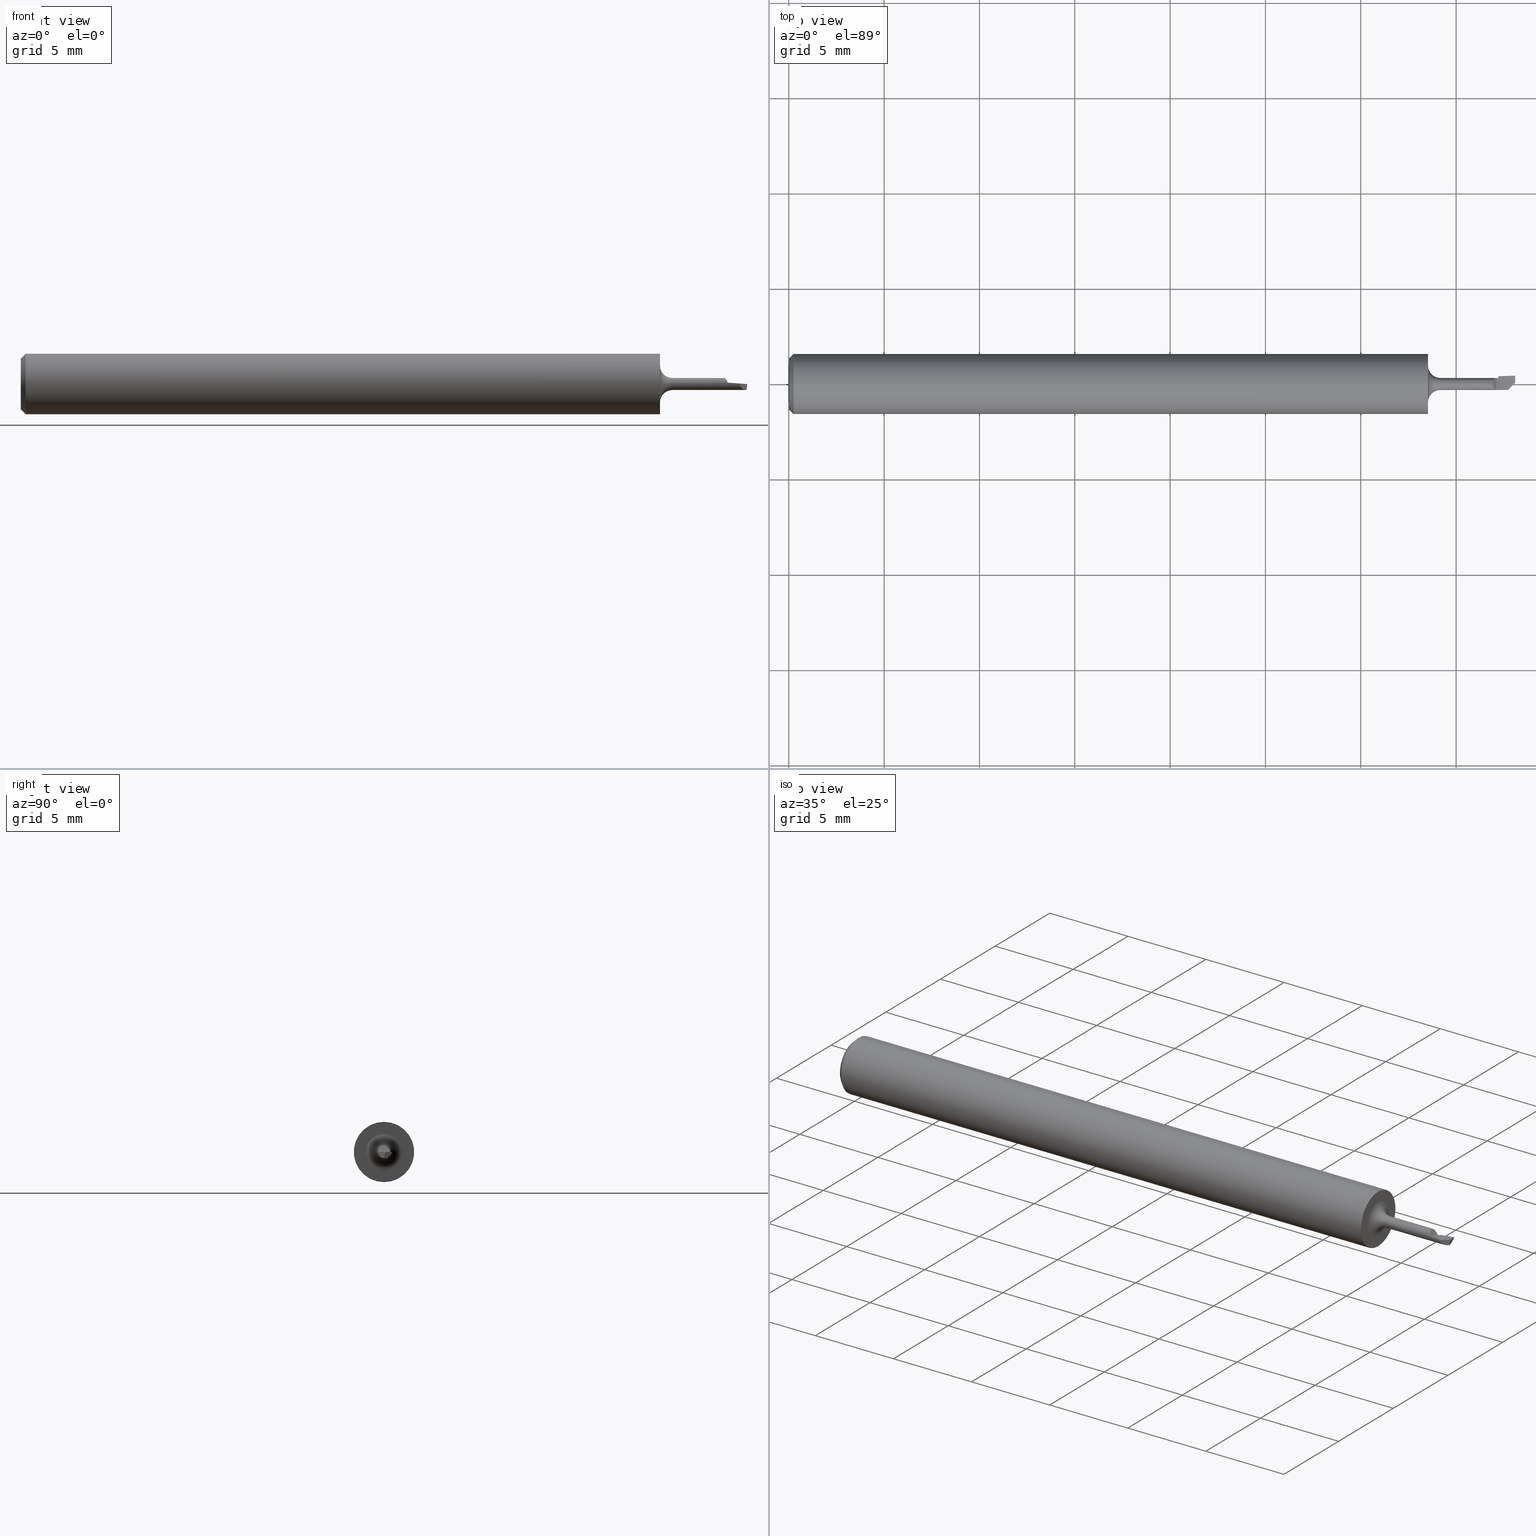
[diagram: canonical four-view strip — front | top / right | iso, engineering-drawing reading convention]
A machine part, canonical four-view strip (front | top / right | iso — engineering-drawing reading convention). The complete STEP part file that produces these views, byte-faithful:
ISO-10303-21;
HEADER;
FILE_DESCRIPTION (( 'STEP AP203' ),
    '1' );
FILE_NAME ('215928-HB31.STEP',
    '2024-08-07T22:01:55',
    ( '' ),
    ( '' ),
    'SwSTEP 2.0',
    'SolidWorks 2024',
    '' );
FILE_SCHEMA (( 'CONFIG_CONTROL_DESIGN' ));
ENDSEC;

DATA;
#1 = FACE_OUTER_BOUND ( 'NONE', #499, .T. ) ;
#2 = CARTESIAN_POINT ( 'NONE',  ( 1.499568977224575050, 0.01530859126183419308, -0.003372285473704751679 ) ) ;
#3 = CARTESIAN_POINT ( 'NONE',  ( 0.8650804472701465464, 0.002410337224576500435, 0.003666942345457207403 ) ) ;
#4 = CARTESIAN_POINT ( 'NONE',  ( 1.345000000000000195, 0.000000000000000000, 0.01250000000000006661 ) ) ;
#5 = CARTESIAN_POINT ( 'NONE',  ( 1.232665451482210628, -0.005246393459074461842, -0.008743202642960995474 ) ) ;
#6 = CARTESIAN_POINT ( 'NONE',  ( 1.455444706846065195, 0.01007654107474560169, 0.007428221384225626618 ) ) ;
#7 = CARTESIAN_POINT ( 'NONE',  ( 1.464999999999999858, 0.01608540512599819505, -0.003590335263103613603 ) ) ;
#8 = AXIS2_PLACEMENT_3D ( 'NONE', #105, #705, #698 ) ;
#9 = AXIS2_PLACEMENT_3D ( 'NONE', #49, #55, #534 ) ;
#10 = CARTESIAN_POINT ( 'NONE',  ( 1.032164540093761129, 0.05709609469763240325, 0.09751392281030193954 ) ) ;
#11 = B_SPLINE_CURVE_WITH_KNOTS ( 'NONE', 3,
 ( #158, #453, #449, #290 ),
 .UNSPECIFIED., .F., .F.,
 ( 4, 4 ),
 ( 4.242899157399713870E-06, 0.0003113284762453003419 ),
 .UNSPECIFIED. ) ;
#12 = CARTESIAN_POINT ( 'NONE',  ( 1.454000000000000181, 0.006698961006262762682, 0.01055338435936888433 ) ) ;
#13 = ORIENTED_EDGE ( 'NONE', *, *, #287, .F. ) ;
#14 = DIRECTION ( 'NONE',  ( -1.000000000000000000, -0.000000000000000000, -0.000000000000000000 ) ) ;
#15 = CARTESIAN_POINT ( 'NONE',  ( 1.320000000000000506, 4.592425496802573602E-18, -0.03749999999999999861 ) ) ;
#16 = EDGE_LOOP ( 'NONE', ( #181, #164, #529, #73, #712, #349, #562 ) ) ;
#17 = DIRECTION ( 'NONE',  ( 0.000000000000000000, 0.000000000000000000, 1.000000000000000000 ) ) ;
#18 = CARTESIAN_POINT ( 'NONE',  ( 1.320000000000000506, 0.000000000000000000, 0.000000000000000000 ) ) ;
#19 = CARTESIAN_POINT ( 'NONE',  ( 1.498369949481639152, 0.006342871992156513122, -0.01250000000000006488 ) ) ;
#20 = LOCAL_TIME ( 15, 1, 55.00000000000000000, #526 ) ;
#21 = VERTEX_POINT ( 'NONE', #612 ) ;
#22 = CARTESIAN_POINT ( 'NONE',  ( 1.485041703757263631, -0.01245749649637891907, 0.001029942252123407492 ) ) ;
#23 = FACE_OUTER_BOUND ( 'NONE', #647, .T. ) ;
#24 = CARTESIAN_POINT ( 'NONE',  ( 1.462051587108394557, 0.01394852648541363219, -0.003426026937244593118 ) ) ;
#25 = CARTESIAN_POINT ( 'NONE',  ( 1.295555555555556015, -0.02284092952231389639, 0.1107103130111015826 ) ) ;
#26 = EDGE_CURVE ( 'NONE', #299, #110, #425, .T. ) ;
#27 = CARTESIAN_POINT ( 'NONE',  ( 1.476120869732279628, 0.005003748327497252978, -0.01250000000000038754 ) ) ;
#28 = ORIENTED_EDGE ( 'NONE', *, *, #598, .T. ) ;
#29 = CARTESIAN_POINT ( 'NONE',  ( 1.460695548811296041, -0.004139149424745731595, 0.0006328197808148573918 ) ) ;
#30 = CARTESIAN_POINT ( 'NONE',  ( 0.9653309029643920569, -0.005572877234708940170, 0.001369317766889410369 ) ) ;
#31 = CARTESIAN_POINT ( 'NONE',  ( 0.01000000000000000021, 7.635672792683746671E-18, 0.06235000000000000264 ) ) ;
#32 = ORIENTED_EDGE ( 'NONE', *, *, #392, .F. ) ;
#33 = CARTESIAN_POINT ( 'NONE',  ( 1.465000000000000080, 0.01455740059669920032, -0.005252112975968464652 ) ) ;
#34 = EDGE_CURVE ( 'NONE', #467, #186, #618, .T. ) ;
#35 = AXIS2_PLACEMENT_3D ( 'NONE', #102, #768, #59 ) ;
#36 = CARTESIAN_POINT ( 'NONE',  ( 1.466581798889520227, 0.01652081222870605340, -0.003622029989243569573 ) ) ;
#37 = ORIENTED_EDGE ( 'NONE', *, *, #762, .F. ) ;
#38 =( NAMED_UNIT ( * ) PLANE_ANGLE_UNIT ( ) SI_UNIT ( $, .RADIAN. ) );
#39 = FACE_OUTER_BOUND ( 'NONE', #358, .T. ) ;
#40 = ORIENTED_EDGE ( 'NONE', *, *, #577, .T. ) ;
#41 = AXIS2_PLACEMENT_3D ( 'NONE', #516, #464, #397 ) ;
#42 = CARTESIAN_POINT ( 'NONE',  ( 1.295555555555556237, -0.01618018765744452456, 0.03480294528249396752 ) ) ;
#43 = AXIS2_PLACEMENT_3D ( 'NONE', #65, #601, #381 ) ;
#44 = EDGE_CURVE ( 'NONE', #409, #414, #115, .T. ) ;
#45 = CARTESIAN_POINT ( 'NONE',  ( 0.8650804472701465464, 0.002410337224576500435, 0.003666942345457207403 ) ) ;
#46 = ORIENTED_EDGE ( 'NONE', *, *, #159, .T. ) ;
#47 = PERSON_AND_ORGANIZATION ( #773, #248 ) ;
#48 = CIRCLE ( 'NONE', #756, 0.01250000000000006661 ) ;
#49 = CARTESIAN_POINT ( 'NONE',  ( 1.400000000000000133, 0.000000000000000000, -0.01250000000000006661 ) ) ;
#50 = TOROIDAL_SURFACE ( 'NONE', #711, 0.03749999999999999861, 0.02499999999999993547 ) ;
#51 = PRODUCT_DEFINITION_SHAPE ( 'NONE', 'NONE',  #152 ) ;
#52 = ORIENTED_EDGE ( 'NONE', *, *, #411, .T. ) ;
#53 = PERSON_AND_ORGANIZATION_ROLE ( 'creator' ) ;
#54 = EDGE_CURVE ( 'NONE', #261, #679, #11, .T. ) ;
#55 = DIRECTION ( 'NONE',  ( 0.000000000000000000, -3.011620060717991125E-16, 1.000000000000000000 ) ) ;
#56 = CARTESIAN_POINT ( 'NONE',  ( 1.472458519122315401, 0.01640158266995582828, -0.002864697057897869908 ) ) ;
#57 = CARTESIAN_POINT ( 'NONE',  ( 1.132414995788018297, -0.01281262090465417822, 0.1107851510608955647 ) ) ;
#58 = B_SPLINE_CURVE_WITH_KNOTS ( 'NONE', 3,
 ( #79, #750, #674, #742 ),
 .UNSPECIFIED., .F., .F.,
 ( 4, 4 ),
 ( 0.000000000000000000, 0.0003789048104820431895 ),
 .UNSPECIFIED. ) ;
#59 = DIRECTION ( 'NONE',  ( 0.000000000000000000, 0.000000000000000000, 1.000000000000000000 ) ) ;
#60 = CARTESIAN_POINT ( 'NONE',  ( 1.320000000000000506, 0.1123499999999999638, 0.000000000000000000 ) ) ;
#61 = CARTESIAN_POINT ( 'NONE',  ( 1.465000000000000080, 0.01006562679194800657, -0.008826101852027840033 ) ) ;
#62 = CARTESIAN_POINT ( 'NONE',  ( 0.9653309029643920569, -0.002396059758147797442, 0.004859538687807597387 ) ) ;
#63 = CARTESIAN_POINT ( 'NONE',  ( 1.456522233055266069, 0.01125274778109892210, 0.005463765143562162793 ) ) ;
#64 = PERSON_AND_ORGANIZATION ( #773, #248 ) ;
#65 = CARTESIAN_POINT ( 'NONE',  ( 1.500000000000000222, 0.01725000000000000144, 0.000000000000000000 ) ) ;
#66 = CARTESIAN_POINT ( 'NONE',  ( 1.433166362870581079, 0.03559344457268497075, 0.03984204519339119149 ) ) ;
#67 = EDGE_CURVE ( 'NONE', #533, #446, #325, .T. ) ;
#68 = B_SPLINE_SURFACE_WITH_KNOTS ( 'NONE', 1, 3, ( 
 ( #210, #571, #331, #283 ),
 ( #93, #626, #150, #24 ) ),
 .UNSPECIFIED., .F., .F., .F.,
 ( 2, 2 ),
 ( 4, 4 ),
 ( 0.000000000000000000, 1.000000000000000000 ),
 ( 0.001217962266094316454, 0.001910476169336705176 ),
 .UNSPECIFIED. ) ;
#69 = DIRECTION ( 'NONE',  ( 0.1220122463319273654, 0.1220122463319272405, 0.9850005195379716305 ) ) ;
#70 = CARTESIAN_POINT ( 'NONE',  ( 1.065581358658504119, 0.03413286597575752174, 0.1071583985665982286 ) ) ;
#71 = MANIFOLD_SOLID_BREP ( 'Front Angle', #485 ) ;
#72 = CARTESIAN_POINT ( 'NONE',  ( 1.499913948961489885, 0.01686470825022036782, -0.0006734193550923067663 ) ) ;
#73 = ORIENTED_EDGE ( 'NONE', *, *, #597, .T. ) ;
#74 = CIRCLE ( 'NONE', #275, 0.03749999999999999861 ) ;
#75 = ORIENTED_EDGE ( 'NONE', *, *, #278, .F. ) ;
#76 = LINE ( 'NONE', #265, #554 ) ;
#77 = CARTESIAN_POINT ( 'NONE',  ( 0.6979963544465223046, -0.04743471895664071875, 0.01581169910072053805 ) ) ;
#78 = VERTEX_POINT ( 'NONE', #98 ) ;
#79 = CARTESIAN_POINT ( 'NONE',  ( 1.500000000000000222, 0.01725000000000000144, 0.000000000000000000 ) ) ;
#80 = CC_DESIGN_PERSON_AND_ORGANIZATION_ASSIGNMENT ( #64, #658, ( #632 ) ) ;
#81 = CARTESIAN_POINT ( 'NONE',  ( 1.433166362870581079, 0.01462406615160393754, -0.006746552520783071459 ) ) ;
#82 = DIRECTION ( 'NONE',  ( 0.000000000000000000, 0.000000000000000000, 1.000000000000000000 ) ) ;
#83 = ORIENTED_EDGE ( 'NONE', *, *, #769, .T. ) ;
#84 = FACE_OUTER_BOUND ( 'NONE', #774, .T. ) ;
#85 = DIRECTION ( 'NONE',  ( -1.000000000000000000, -0.000000000000000000, -0.000000000000000000 ) ) ;
#86 = CC_DESIGN_APPROVAL ( #372, ( #152 ) ) ;
#87 = VERTEX_POINT ( 'NONE', #687 ) ;
#88 = DIRECTION ( 'NONE',  ( -1.000000000000000000, -0.000000000000000000, -0.000000000000000000 ) ) ;
#89 = CARTESIAN_POINT ( 'NONE',  ( 1.397777777777778230, -0.08355258941548140972, 0.07614096315668315851 ) ) ;
#90 = DIRECTION ( 'NONE',  ( -1.000000000000000000, -0.000000000000000000, -0.000000000000000000 ) ) ;
#91 = CC_DESIGN_PERSON_AND_ORGANIZATION_ASSIGNMENT ( #108, #764, ( #535 ) ) ;
#92 = VERTEX_POINT ( 'NONE', #628 ) ;
#93 = CARTESIAN_POINT ( 'NONE',  ( 1.459991938184257210, -0.01338498720008075328, 0.003263529200124819750 ) ) ;
#94 = CARTESIAN_POINT ( 'NONE',  ( 1.454341036167584367, -0.002918658190471907533, 0.01229876029825267315 ) ) ;
#95 = ORIENTED_EDGE ( 'NONE', *, *, #668, .T. ) ;
#96 = CARTESIAN_POINT ( 'NONE',  ( 1.465000000000000080, 0.01375879113673898757, -0.006120638542481652775 ) ) ;
#97 = EDGE_CURVE ( 'NONE', #414, #261, #306, .T. ) ;
#98 = CARTESIAN_POINT ( 'NONE',  ( 1.320000000000000506, 0.000000000000000000, 0.06234999999999997489 ) ) ;
#99 = VERTEX_POINT ( 'NONE', #145 ) ;
#100 = CARTESIAN_POINT ( 'NONE',  ( 1.465000000000000080, 0.01349258796840599288, -0.006410147050848328740 ) ) ;
#101 = LOCAL_TIME ( 15, 1, 55.00000000000000000, #246 ) ;
#102 = CARTESIAN_POINT ( 'NONE',  ( 1.345000000000000195, 0.000000000000000000, 0.000000000000000000 ) ) ;
#103 = ORIENTED_EDGE ( 'NONE', *, *, #598, .F. ) ;
#104 = ADVANCED_FACE ( 'NONE', ( #279 ), #513, .T. ) ;
#105 = CARTESIAN_POINT ( 'NONE',  ( 0.000000000000000000, 0.000000000000000000, 0.000000000000000000 ) ) ;
#106 = CARTESIAN_POINT ( 'NONE',  ( 0.000000000000000000, 0.000000000000000000, 0.000000000000000000 ) ) ;
#107 = ORIENTED_EDGE ( 'NONE', *, *, #346, .F. ) ;
#108 = PERSON_AND_ORGANIZATION ( #773, #248 ) ;
#109 = CARTESIAN_POINT ( 'NONE',  ( 1.132414995788018297, -0.007879672866316880103, -0.002327010303872123227 ) ) ;
#110 = VERTEX_POINT ( 'NONE', #581 ) ;
#111 = DIRECTION ( 'NONE',  ( 0.000000000000000000, 0.000000000000000000, 1.000000000000000000 ) ) ;
#112 = EDGE_CURVE ( 'NONE', #679, #288, #700, .T. ) ;
#113 = APPROVAL_PERSON_ORGANIZATION ( #608, #702, #378 ) ;
#114 = CARTESIAN_POINT ( 'NONE',  ( 1.266082270046997138, 0.001143307686023746148, -0.01239045944946556670 ) ) ;
#115 = LINE ( 'NONE', #733, #311 ) ;
#116 = CALENDAR_DATE ( 2024, 7, 8 ) ;
#117 = CARTESIAN_POINT ( 'NONE',  ( 0.7314308537167025781, 0.07390837143920864216, -0.09143997505916576229 ) ) ;
#118 = CARTESIAN_POINT ( 'NONE',  ( 1.500000000000000222, 0.01494059892324153295, -0.004000000000000000083 ) ) ;
#119 = ORIENTED_EDGE ( 'NONE', *, *, #112, .F. ) ;
#120 = COORDINATED_UNIVERSAL_TIME_OFFSET ( 8, 0, .BEHIND. ) ;
#121 = EDGE_CURVE ( 'NONE', #446, #533, #74, .T. ) ;
#122 = CARTESIAN_POINT ( 'NONE',  ( 0.8316636287054387511, 0.1124910177508092468, -0.02841669314176631031 ) ) ;
#123 = CARTESIAN_POINT ( 'NONE',  ( 1.455747550097902243, 0.01047539370039222983, 0.006856804697760013161 ) ) ;
#124 = AXIS2_PLACEMENT_3D ( 'NONE', #607, #610, #555 ) ;
#125 = B_SPLINE_CURVE_WITH_KNOTS ( 'NONE', 3,
 ( #476, #713, #725, #489 ),
 .UNSPECIFIED., .F., .F.,
 ( 4, 4 ),
 ( 0.000000000000000000, 1.000000000000000000 ),
 .UNSPECIFIED. ) ;
#126 = SECURITY_CLASSIFICATION_LEVEL ( 'unclassified' ) ;
#127 = CARTESIAN_POINT ( 'NONE',  ( 1.366332725741049359, -0.1079656148466308918, -0.006161488474007116231 ) ) ;
#128 = CARTESIAN_POINT ( 'NONE',  ( 1.499612231644110283, 0.01550436306007636419, -0.003033933789364404512 ) ) ;
#129 = B_SPLINE_SURFACE_WITH_KNOTS ( 'NONE', 1, 3, ( 
 ( #132, #380, #66, #258, #317, #495, #341, #148, #151, #511, #631, #748, #578, #755, #281, #459, #751, #77 ),
 ( #690, #686, #81, #219, #345, #215, #502, #694, #157, #403, #394, #30, #407, #272, #636, #560, #507, #627 ) ),
 .UNSPECIFIED., .F., .F., .F.,
 ( 2, 2 ),
 ( 4, 2, 2, 2, 2, 2, 2, 2, 4 ),
 ( 0.000000000000000000, 1.000000000000000000 ),
 ( 0.000000000000000000, 0.1250000000000000000, 0.2500000000000000000, 0.3750000000000000000, 0.5000000000000000000, 0.6250000000000000000, 0.7500000000000000000, 0.8750000000000000000, 1.000000000000000000 ),
 .UNSPECIFIED. ) ;
#130 = ADVANCED_FACE ( 'NONE', ( #149 ), #50, .F. ) ;
#131 = CARTESIAN_POINT ( 'NONE',  ( 1.132414995788018297, -0.007879672866316880103, -0.002327010303872123227 ) ) ;
#132 = CARTESIAN_POINT ( 'NONE',  ( 1.500000000000000222, 0.01725000000000000144, 0.04999999999999999584 ) ) ;
#133 = SHAPE_DEFINITION_REPRESENTATION ( #51, #319 ) ;
#134 = CARTESIAN_POINT ( 'NONE',  ( 1.397777777777778230, 0.09823352922056906300, -0.05593438303343522405 ) ) ;
#135 = CARTESIAN_POINT ( 'NONE',  ( 0.000000000000000000, 0.000000000000000000, 0.01250000000000003365 ) ) ;
#136 = AXIS2_PLACEMENT_3D ( 'NONE', #18, #448, #206 ) ;
#137 = ORIENTED_EDGE ( 'NONE', *, *, #159, .F. ) ;
#138 = CARTESIAN_POINT ( 'NONE',  ( 1.460086423117198828, -0.01215615169783876119, 0.002911696395425514890 ) ) ;
#139 = CARTESIAN_POINT ( 'NONE',  ( 1.459640502117447003, 0.01255420194936854479, 0.0004352578762248753550 ) ) ;
#140 = VERTEX_POINT ( 'NONE', #220 ) ;
#141 = VECTOR ( 'NONE', #602, 39.37007874015748143 ) ;
#142 = EDGE_LOOP ( 'NONE', ( #469, #296 ) ) ;
#143 = CARTESIAN_POINT ( 'NONE',  ( 1.345000000000000195, 0.000000000000000000, 0.000000000000000000 ) ) ;
#144 = CARTESIAN_POINT ( 'NONE',  ( 0.000000000000000000, 0.000000000000000000, 0.06234999999999997489 ) ) ;
#145 = CARTESIAN_POINT ( 'NONE',  ( 1.465000000000000302, 0.01609055847708769360, -0.003567278344334492892 ) ) ;
#146 = ORIENTED_EDGE ( 'NONE', *, *, #426, .T. ) ;
#147 = CARTESIAN_POINT ( 'NONE',  ( 1.461915920283091141, 0.01212176340520658251, -0.003051696568827713674 ) ) ;
#148 = CARTESIAN_POINT ( 'NONE',  ( 1.165831814352681128, 0.03893524870061277482, -0.03439701694608375548 ) ) ;
#149 = FACE_OUTER_BOUND ( 'NONE', #354, .T. ) ;
#150 = CARTESIAN_POINT ( 'NONE',  ( 1.461370886741436337, 0.004764741243659647435, -0.001570669611761896147 ) ) ;
#151 = CARTESIAN_POINT ( 'NONE',  ( 1.132414995788018297, 0.03120524555122251853, -0.04134609787495382993 ) ) ;
#152 = PRODUCT_DEFINITION ( 'UNKNOWN', '', #632, #703 ) ;
#153 = CARTESIAN_POINT ( 'NONE',  ( 1.320000000000000506, 0.000000000000000000, 0.000000000000000000 ) ) ;
#154 = CIRCLE ( 'NONE', #339, 0.06235000000000000264 ) ;
#155 = CARTESIAN_POINT ( 'NONE',  ( 0.000000000000000000, 0.000000000000000000, 0.000000000000000000 ) ) ;
#156 = AXIS2_PLACEMENT_3D ( 'NONE', #216, #460, #625 ) ;
#157 = CARTESIAN_POINT ( 'NONE',  ( 1.132414995788018297, -0.006460711501457624614, -0.006828161267924969663 ) ) ;
#158 = CARTESIAN_POINT ( 'NONE',  ( 1.498369949481639152, 0.006342871992156513122, -0.01250000000000006488 ) ) ;
#159 = EDGE_CURVE ( 'NONE', #92, #643, #338, .T. ) ;
#160 = ORIENTED_EDGE ( 'NONE', *, *, #744, .F. ) ;
#161 = CALENDAR_DATE ( 2024, 7, 8 ) ;
#162 = CARTESIAN_POINT ( 'NONE',  ( 1.457046886878584635, -0.009404679058930347571, 0.008637345204968760112 ) ) ;
#163 = B_SPLINE_CURVE_WITH_KNOTS ( 'NONE', 3,
 ( #386, #486, #61, #188 ),
 .UNSPECIFIED., .F., .F.,
 ( 4, 4 ),
 ( 0.002552255538385552955, 0.002813486965599195679 ),
 .UNSPECIFIED. ) ;
#164 = ORIENTED_EDGE ( 'NONE', *, *, #630, .T. ) ;
#165 = CARTESIAN_POINT ( 'NONE',  ( 1.489949088132650479, -0.007550112120981698066, 6.166681142705690935E-05 ) ) ;
#166 = B_SPLINE_CURVE_WITH_KNOTS ( 'NONE', 3,
 ( #637, #641, #457, #701 ),
 .UNSPECIFIED., .F., .F.,
 ( 4, 4 ),
 ( 0.000000000000000000, 1.000000000000000000 ),
 .UNSPECIFIED. ) ;
#167 = CARTESIAN_POINT ( 'NONE',  ( 1.346666666666667345, -0.02748835006664292202, 0.02954568362384567617 ) ) ;
#168 = CARTESIAN_POINT ( 'NONE',  ( 1.165831814352681128, -0.005252881428218766045, -0.008752886544939084829 ) ) ;
#169 = PRODUCT_RELATED_PRODUCT_CATEGORY ( 'detail', '', ( #535 ) ) ;
#170 = ORIENTED_EDGE ( 'NONE', *, *, #392, .T. ) ;
#171 = CALENDAR_DATE ( 2024, 7, 8 ) ;
#172 = VECTOR ( 'NONE', #419, 39.37007874015748143 ) ;
#173 = CARTESIAN_POINT ( 'NONE',  ( 1.397777777777778452, -0.03354670476044024907, 0.01864569850346843929 ) ) ;
#174 = CARTESIAN_POINT ( 'NONE',  ( 1.165831814352681128, -0.007603480191306417890, -0.004660393806857164936 ) ) ;
#175 = ORIENTED_EDGE ( 'NONE', *, *, #752, .F. ) ;
#176 = CARTESIAN_POINT ( 'NONE',  ( 1.466581871668063419, 0.01337152355710471627, -0.007137111855321057706 ) ) ;
#177 = EDGE_CURVE ( 'NONE', #533, #370, #428, .T. ) ;
#178 = ORIENTED_EDGE ( 'NONE', *, *, #192, .F. ) ;
#179 = APPROVAL_STATUS ( 'not_yet_approved' ) ;
#180 = FACE_OUTER_BOUND ( 'NONE', #753, .T. ) ;
#181 = ORIENTED_EDGE ( 'NONE', *, *, #361, .F. ) ;
#182 = APPROVAL_DATE_TIME ( #669, #702 ) ;
#183 = CARTESIAN_POINT ( 'NONE',  ( 1.232665451482210628, -0.001448306153621563503, -0.01154469227821511811 ) ) ;
#184 = AXIS2_PLACEMENT_3D ( 'NONE', #740, #633, #347 ) ;
#185 = ADVANCED_FACE ( 'NONE', ( #286 ), #758, .F. ) ;
#186 = VERTEX_POINT ( 'NONE', #225 ) ;
#187 = FACE_OUTER_BOUND ( 'NONE', #363, .T. ) ;
#188 = CARTESIAN_POINT ( 'NONE',  ( 1.465000000000000302, 0.01296018158670124432, -0.006989164026168523912 ) ) ;
#189 = DATE_AND_TIME ( #371, #644 ) ;
#190 = CARTESIAN_POINT ( 'NONE',  ( 1.065581358658504119, -0.006844163704740053103, 0.001614198993540216960 ) ) ;
#191 = CARTESIAN_POINT ( 'NONE',  ( 1.454642789251386459, 0.008774535034534642480, 0.009006561318512740222 ) ) ;
#192 = EDGE_CURVE ( 'NONE', #229, #467, #166, .T. ) ;
#193 = CARTESIAN_POINT ( 'NONE',  ( 1.500000000000000222, 0.1123499999999999083, 0.01248835331256540129 ) ) ;
#194 = DIRECTION ( 'NONE',  ( 0.000000000000000000, 0.000000000000000000, 1.000000000000000000 ) ) ;
#195 = VECTOR ( 'NONE', #509, 39.37007874015748143 ) ;
#196 = CARTESIAN_POINT ( 'NONE',  ( 1.165831814352681128, -0.007603480191306417890, -0.004660393806857164936 ) ) ;
#197 = FACE_OUTER_BOUND ( 'NONE', #16, .T. ) ;
#198 = DIRECTION ( 'NONE',  ( 0.000000000000000000, 1.000000000000000000, 3.011620060717991125E-16 ) ) ;
#199 = ADVANCED_FACE ( 'NONE', ( #691 ), #566, .T. ) ;
#200 = CARTESIAN_POINT ( 'NONE',  ( 1.465000000000000524, 0.01478500159450470142, -0.003324809296551923827 ) ) ;
#201 = CARTESIAN_POINT ( 'NONE',  ( 1.457105876232366981, 0.01167649469476671198, 0.004462932437568943068 ) ) ;
#202 = CC_DESIGN_DATE_AND_TIME_ASSIGNMENT ( #189, #544, ( #208 ) ) ;
#203 = ORIENTED_EDGE ( 'NONE', *, *, #26, .T. ) ;
#204 = ORIENTED_EDGE ( 'NONE', *, *, #301, .F. ) ;
#205 = CARTESIAN_POINT ( 'NONE',  ( 1.472702441413120900, -0.01237875570651297656, 0.001982338478081485146 ) ) ;
#206 = DIRECTION ( 'NONE',  ( 0.000000000000000000, 0.000000000000000000, -1.000000000000000000 ) ) ;
#207 = CARTESIAN_POINT ( 'NONE',  ( 1.433166362870581079, 0.01462406615160393754, -0.006746552520783071459 ) ) ;
#208 = SECURITY_CLASSIFICATION ( '', '', #126 ) ;
#209 = ORIENTED_EDGE ( 'NONE', *, *, #361, .T. ) ;
#210 = CARTESIAN_POINT ( 'NONE',  ( 1.453999999999999737, -0.01010944439978951961, 0.01489342426716783706 ) ) ;
#211 = CARTESIAN_POINT ( 'NONE',  ( 1.465000000000001412, 0.01217676205890043037, -0.002824263758803366095 ) ) ;
#212 = CARTESIAN_POINT ( 'NONE',  ( 1.499482519235887823, 0.01491622128947904871, -0.004048516750813125481 ) ) ;
#213 = ORIENTED_EDGE ( 'NONE', *, *, #466, .F. ) ;
#214 = CARTESIAN_POINT ( 'NONE',  ( 1.461305929876338006, 0.003961286090031847923, -0.001356915620124828428 ) ) ;
#215 = CARTESIAN_POINT ( 'NONE',  ( 1.266082270046997138, 0.001143307686023746148, -0.01239045944946556670 ) ) ;
#216 = CARTESIAN_POINT ( 'NONE',  ( 1.470857864376269308, -0.02664133587737325254, -0.04999999999999998890 ) ) ;
#217 = ADVANCED_FACE ( 'NONE', ( #342 ), #312, .T. ) ;
#218 = CARTESIAN_POINT ( 'NONE',  ( 1.345000000000000195, 4.592425496802574373E-18, -0.03749999999999999861 ) ) ;
#219 = CARTESIAN_POINT ( 'NONE',  ( 1.366332725741049359, 0.009719719882169434652, -0.01099884105597448945 ) ) ;
#220 = CARTESIAN_POINT ( 'NONE',  ( 1.320000000000000506, 7.635672792683743590E-18, -0.06234999999999997489 ) ) ;
#221 = VECTOR ( 'NONE', #747, 39.37007874015748854 ) ;
#222 = ORIENTED_EDGE ( 'NONE', *, *, #715, .F. ) ;
#223 = APPLICATION_PROTOCOL_DEFINITION ( 'international standard', 'config_control_design', 1994, #746 ) ;
#224 = CARTESIAN_POINT ( 'NONE',  ( 1.458397574755029735, -0.01137866734836277816, 0.006157613910127893338 ) ) ;
#225 = CARTESIAN_POINT ( 'NONE',  ( 1.464999999999999858, 0.01608540512599819505, -0.003590335263103613603 ) ) ;
#226 = ORIENTED_EDGE ( 'NONE', *, *, #540, .T. ) ;
#227 =( NAMED_UNIT ( * ) SI_UNIT ( $, .STERADIAN. ) SOLID_ANGLE_UNIT ( ) );
#228 = CYLINDRICAL_SURFACE ( 'NONE', #250, 0.06234999999999997489 ) ;
#229 = VERTEX_POINT ( 'NONE', #776 ) ;
#230 = PERSON_AND_ORGANIZATION ( #773, #248 ) ;
#231 = DIRECTION ( 'NONE',  ( 0.000000000000000000, 0.000000000000000000, -1.000000000000000000 ) ) ;
#232 = B_SPLINE_CURVE_WITH_KNOTS ( 'NONE', 3,
 ( #739, #224, #162, #564, #94, #284 ),
 .UNSPECIFIED., .F., .F.,
 ( 4, 2, 4 ),
 ( 0.000000000000000000, 0.5000000000000000000, 1.000000000000000000 ),
 .UNSPECIFIED. ) ;
#233 = VERTEX_POINT ( 'NONE', #420 ) ;
#234 = CARTESIAN_POINT ( 'NONE',  ( 1.465000000000000080, 0.01506673549475874736, -0.004698187122215800350 ) ) ;
#235 = AXIS2_PLACEMENT_3D ( 'NONE', #689, #619, #280 ) ;
#236 = CARTESIAN_POINT ( 'NONE',  ( 1.460086423117198828, -0.01215615169783876119, 0.002911696395425514890 ) ) ;
#237 = VERTEX_POINT ( 'NONE', #706 ) ;
#238 = CC_DESIGN_PERSON_AND_ORGANIZATION_ASSIGNMENT ( #367, #314, ( #208 ) ) ;
#239 = CARTESIAN_POINT ( 'NONE',  ( 1.500000000000000000, 0.03809952085550590700, -0.004633571359898901003 ) ) ;
#240 = CARTESIAN_POINT ( 'NONE',  ( 0.8650804472701465464, -0.002212761750993471992, 0.002717854773946393535 ) ) ;
#241 = ADVANCED_FACE ( 'NONE', ( #39 ), #681, .T. ) ;
#242 = EDGE_LOOP ( 'NONE', ( #95, #209, #329, #75, #684, #450, #661 ) ) ;
#243 = CARTESIAN_POINT ( 'NONE',  ( 0.01000000000000000021, 0.000000000000000000, 0.000000000000000000 ) ) ;
#244 = ADVANCED_FACE ( 'NONE', ( #648 ), #527, .F. ) ;
#245 = ORIENTED_EDGE ( 'NONE', *, *, #418, .F. ) ;
#246 = COORDINATED_UNIVERSAL_TIME_OFFSET ( 8, 0, .BEHIND. ) ;
#247 = CARTESIAN_POINT ( 'NONE',  ( 0.6979963544465223046, 0.05202389955446863612, -0.1030598478982263921 ) ) ;
#248 = ORGANIZATION ( 'UNSPECIFIED', 'UNSPECIFIED', '' ) ;
#249 = CARTESIAN_POINT ( 'NONE',  ( 1.500000000000000222, 0.01725000000000000144, 0.000000000000000000 ) ) ;
#250 = AXIS2_PLACEMENT_3D ( 'NONE', #106, #357, #583 ) ;
#251 = PLANE ( 'NONE',  #43 ) ;
#252 = CARTESIAN_POINT ( 'NONE',  ( 1.461915920283091141, 0.01212176340520658251, -0.003051696568827713674 ) ) ;
#253 = ADVANCED_FACE ( 'NONE', ( #180 ), #620, .T. ) ;
#254 = CARTESIAN_POINT ( 'NONE',  ( 1.433166362870581079, -0.09506866788055788609, -0.04965042286810590622 ) ) ;
#255 = CARTESIAN_POINT ( 'NONE',  ( 0.01000000000000000021, 0.000000000000000000, 0.000000000000000000 ) ) ;
#256 = CALENDAR_DATE ( 2024, 7, 8 ) ;
#257 = CARTESIAN_POINT ( 'NONE',  ( 0.6979963544465223046, 0.002966954904333800064, -0.003707640164359381901 ) ) ;
#258 = CARTESIAN_POINT ( 'NONE',  ( 1.366332725741049359, 0.04765610558905156169, 0.02322166314603869158 ) ) ;
#259 = VECTOR ( 'NONE', #484, 39.37007874015748143 ) ;
#260 = ADVANCED_FACE ( 'NONE', ( #369 ), #389, .F. ) ;
#261 = VERTEX_POINT ( 'NONE', #424 ) ;
#262 = FACE_OUTER_BOUND ( 'NONE', #567, .T. ) ;
#263 = CARTESIAN_POINT ( 'NONE',  ( 1.468729699229658126, 0.01625201021397345777, -0.003217681299633989075 ) ) ;
#264 = ORIENTED_EDGE ( 'NONE', *, *, #677, .F. ) ;
#265 = CARTESIAN_POINT ( 'NONE',  ( 1.448749600126821413, -0.04874960012682125893, -0.01250000000000008223 ) ) ;
#266 = CARTESIAN_POINT ( 'NONE',  ( 1.454000000000000181, 0.006698961006262762682, 0.01055338435936888433 ) ) ;
#267 = ADVANCED_FACE ( 'NONE', ( #521 ), #228, .T. ) ;
#268 = VERTEX_POINT ( 'NONE', #236 ) ;
#269 = EDGE_CURVE ( 'NONE', #462, #719, #125, .T. ) ;
#270 = CYLINDRICAL_SURFACE ( 'NONE', #695, 0.06234999999999997489 ) ;
#271 = B_SPLINE_CURVE_WITH_KNOTS ( 'NONE', 3,
 ( #444, #780, #263, #432 ),
 .UNSPECIFIED., .F., .F.,
 ( 4, 4 ),
 ( 0.000000000000000000, 0.0002857138385154434882 ),
 .UNSPECIFIED. ) ;
#272 = CARTESIAN_POINT ( 'NONE',  ( 0.8650804472701465464, -0.002212761750993471992, 0.002717854773946393535 ) ) ;
#273 = CARTESIAN_POINT ( 'NONE',  ( 1.465000000000000302, 0.01296018158670124432, -0.006989164026168523912 ) ) ;
#274 = CIRCLE ( 'NONE', #297, 0.01250000000000006661 ) ;
#275 = AXIS2_PLACEMENT_3D ( 'NONE', #153, #85, #82 ) ;
#276 = DIRECTION ( 'NONE',  ( -1.000000000000000000, -0.000000000000000000, -0.000000000000000000 ) ) ;
#277 = CARTESIAN_POINT ( 'NONE',  ( 1.500000000000000222, -0.1123499999999997279, 0.01248835331256526425 ) ) ;
#278 = EDGE_CURVE ( 'NONE', #719, #370, #471, .T. ) ;
#279 = FACE_OUTER_BOUND ( 'NONE', #303, .T. ) ;
#280 = DIRECTION ( 'NONE',  ( 0.000000000000000000, 0.000000000000000000, -1.000000000000000000 ) ) ;
#281 = CARTESIAN_POINT ( 'NONE',  ( 0.8316636287054387511, -0.04577060083308064076, -0.02252181794317318839 ) ) ;
#282 = ORIENTED_EDGE ( 'NONE', *, *, #301, .T. ) ;
#283 = CARTESIAN_POINT ( 'NONE',  ( 1.454000000000000181, 0.01641637818324989673, 0.008397834022618337613 ) ) ;
#284 = CARTESIAN_POINT ( 'NONE',  ( 1.454000000000000181, -0.0007201491589958213977, 0.01246978870414893088 ) ) ;
#285 = B_SPLINE_CURVE_WITH_KNOTS ( 'NONE', 3,
 ( #716, #300, #165, #530 ),
 .UNSPECIFIED., .F., .F.,
 ( 4, 4 ),
 ( 5.958592449670930600E-06, 0.0005383644838308478337 ),
 .UNSPECIFIED. ) ;
#286 = FACE_OUTER_BOUND ( 'NONE', #474, .T. ) ;
#287 = EDGE_CURVE ( 'NONE', #467, #99, #271, .T. ) ;
#288 = VERTEX_POINT ( 'NONE', #551 ) ;
#289 = CARTESIAN_POINT ( 'NONE',  ( 1.465000000000000080, 0.01429119745839205376, -0.005541621511943913524 ) ) ;
#290 = CARTESIAN_POINT ( 'NONE',  ( 1.499482519235887823, 0.01491622128947904871, -0.004048516750813125481 ) ) ;
#291 = ORIENTED_EDGE ( 'NONE', *, *, #112, .T. ) ;
#292 = CARTESIAN_POINT ( 'NONE',  ( 1.132414995788018297, -0.006460711501457624614, -0.006828161267924969663 ) ) ;
#293 = ORIENTED_EDGE ( 'NONE', *, *, #614, .T. ) ;
#294 = CARTESIAN_POINT ( 'NONE',  ( 0.01000000000000000021, 0.000000000000000000, 0.000000000000000000 ) ) ;
#295 = UNCERTAINTY_MEASURE_WITH_UNIT (LENGTH_MEASURE( 1.000000000000000082E-05 ), #520, 'distance_accuracy_value', 'NONE');
#296 = ORIENTED_EDGE ( 'NONE', *, *, #121, .T. ) ;
#297 = AXIS2_PLACEMENT_3D ( 'NONE', #143, #88, #340 ) ;
#298 = CARTESIAN_POINT ( 'NONE',  ( 1.433166362870581079, 0.01079468072340056435, -0.009505106235825965671 ) ) ;
#299 = VERTEX_POINT ( 'NONE', #671 ) ;
#300 = CARTESIAN_POINT ( 'NONE',  ( 1.494879465852192002, -0.002619734401449614301, -0.0003860274667467682923 ) ) ;
#301 = EDGE_CURVE ( 'NONE', #679, #229, #416, .T. ) ;
#302 = CARTESIAN_POINT ( 'NONE',  ( 0.7314135535828085732, 0.003979471932230574903, -0.002394092718530452159 ) ) ;
#303 = EDGE_LOOP ( 'NONE', ( #723, #360, #480, #318, #37, #107 ) ) ;
#304 = CARTESIAN_POINT ( 'NONE',  ( 0.01000000000000000021, 0.000000000000000000, -0.06235000000000000264 ) ) ;
#305 = CARTESIAN_POINT ( 'NONE',  ( 1.456255121056074797, 0.01100506579900200829, 0.005938302595859959801 ) ) ;
#306 = B_SPLINE_CURVE_WITH_KNOTS ( 'NONE', 3,
 ( #352, #27, #465, #19 ),
 .UNSPECIFIED., .F., .F.,
 ( 4, 4 ),
 ( 5.355754856858404541E-06, 0.0008545759096058059287 ),
 .UNSPECIFIED. ) ;
#307 = COORDINATED_UNIVERSAL_TIME_OFFSET ( 8, 0, .BEHIND. ) ;
#308 = DIRECTION ( 'NONE',  ( 1.000000000000000000, 0.000000000000000000, 0.000000000000000000 ) ) ;
#309 = APPROVAL_PERSON_ORGANIZATION ( #490, #590, #720 ) ;
#310 = CARTESIAN_POINT ( 'NONE',  ( 1.489688632824370362, -0.007810567429272269671, -0.01249999999999990008 ) ) ;
#311 = VECTOR ( 'NONE', #198, 39.37007874015748143 ) ;
#312 = B_SPLINE_SURFACE_WITH_KNOTS ( 'NONE', 1, 3, ( 
 ( #696, #36, #207, #721, #359, #114, #183, #168, #292, #651, #589, #710, #587, #240, #772, #429, #660, #600 ),
 ( #118, #176, #298, #362, #760, #524, #412, #174, #109, #645, #594, #765, #468, #45, #478, #365, #302, #717 ) ),
 .UNSPECIFIED., .F., .F., .F.,
 ( 2, 2 ),
 ( 4, 2, 2, 2, 2, 2, 2, 2, 4 ),
 ( 0.000000000000000000, 1.000000000000000000 ),
 ( 0.000000000000000000, 0.1250000000000000000, 0.2500000000000000000, 0.3750000000000000000, 0.5000000000000000000, 0.6250000000000000000, 0.7500000000000000000, 0.8750000000000000000, 1.000000000000000000 ),
 .UNSPECIFIED. ) ;
#313 = CARTESIAN_POINT ( 'NONE',  ( 1.448888888888889115, 0.1164077119647678876, -0.02401637455920159134 ) ) ;
#314 = PERSON_AND_ORGANIZATION_ROLE ( 'classification_officer' ) ;
#315 = CARTESIAN_POINT ( 'NONE',  ( 0.7314135535828085732, 0.003979471932230574903, -0.002394092718530452159 ) ) ;
#316 = EDGE_CURVE ( 'NONE', #21, #759, #558, .T. ) ;
#317 = CARTESIAN_POINT ( 'NONE',  ( 1.332915907176264403, 0.05112533296621786516, 0.01317138263011019897 ) ) ;
#318 = ORIENTED_EDGE ( 'NONE', *, *, #411, .F. ) ;
#319 = ADVANCED_BREP_SHAPE_REPRESENTATION ( '215928-HB31', ( #71, #8 ), #541 ) ;
#320 = CARTESIAN_POINT ( 'NONE',  ( 1.346666666666666679, 0.08005934647637026613, -0.08785239150766886718 ) ) ;
#321 = CARTESIAN_POINT ( 'NONE',  ( 1.485041703757263631, -0.01245749649637891907, 0.001029942252123407492 ) ) ;
#322 =( BOUNDED_SURFACE ( )  B_SPLINE_SURFACE ( 3, 2, ( 
 ( #277, #624, #89, #572, #25 ),
 ( #512, #775, #173, #167, #42 ),
 ( #239, #351, #666, #488, #491 ),
 ( #193, #313, #134, #320, #609 ) ),
 .UNSPECIFIED., .F., .F., .F. ) 
 B_SPLINE_SURFACE_WITH_KNOTS ( ( 4, 4 ),
 ( 3, 2, 3 ),
 ( 0.000000000000000000, 1.000000000000000000 ),
 ( 0.000000000000000000, 0.5000000000000000000, 1.000000000000000000 ),
 .UNSPECIFIED. ) 
 GEOMETRIC_REPRESENTATION_ITEM ( )  RATIONAL_B_SPLINE_SURFACE ( (
 ( 1.000000000000000000, 0.9510565162951535312, 1.000000000000000000, 0.9510565162951535312, 1.000000000000000000),
 ( 0.9829519941216796619, 0.9348428992147388428, 0.9829519941216796619, 0.9348428992147388428, 0.9829519941216796619),
 ( 0.9829519941216796619, 0.9348428992147388428, 0.9829519941216796619, 0.9348428992147388428, 0.9829519941216796619),
 ( 1.000000000000000000, 0.9510565162951535312, 1.000000000000000000, 0.9510565162951535312, 1.000000000000000000) ) ) 
 REPRESENTATION_ITEM ( '' )  SURFACE ( )  );
#323 = VECTOR ( 'NONE', #390, 39.37007874015748143 ) ;
#324 = ORIENTED_EDGE ( 'NONE', *, *, #287, .T. ) ;
#325 = CIRCLE ( 'NONE', #606, 0.03749999999999999861 ) ;
#326 = LINE ( 'NONE', #500, #221 ) ;
#327 = ADVANCED_FACE ( 'NONE', ( #197 ), #440, .T. ) ;
#328 = CARTESIAN_POINT ( 'NONE',  ( 1.465000000000000302, 0.000000000000000000, -0.01250000000000006661 ) ) ;
#329 = ORIENTED_EDGE ( 'NONE', *, *, #737, .F. ) ;
#330 = ORIENTED_EDGE ( 'NONE', *, *, #442, .F. ) ;
#331 = CARTESIAN_POINT ( 'NONE',  ( 1.454000000000000181, 0.007515113614962152730, 0.01025518717396862144 ) ) ;
#332 = CARTESIAN_POINT ( 'NONE',  ( 1.465000000000000302, 0.01609055847708769360, -0.003567278344334492892 ) ) ;
#333 = DIRECTION ( 'NONE',  ( 0.000000000000000000, 0.000000000000000000, 1.000000000000000000 ) ) ;
#334 = EDGE_LOOP ( 'NONE', ( #622, #293, #40, #592, #514 ) ) ;
#335 = DIRECTION ( 'NONE',  ( -0.7071067811865479058, -0.7071067811865471286, -2.129536967291132304E-16 ) ) ;
#336 = EDGE_CURVE ( 'NONE', #462, #736, #761, .T. ) ;
#337 = CARTESIAN_POINT ( 'NONE',  ( 1.463459236516469364, 0.01215032711074761143, -0.002938237555870416764 ) ) ;
#338 = LINE ( 'NONE', #31, #195 ) ;
#339 = AXIS2_PLACEMENT_3D ( 'NONE', #629, #680, #17 ) ;
#340 = DIRECTION ( 'NONE',  ( 0.000000000000000000, 0.000000000000000000, 1.000000000000000000 ) ) ;
#341 = CARTESIAN_POINT ( 'NONE',  ( 1.232665451482210628, 0.04932226978855935862, -0.01725090703177421456 ) ) ;
#342 = FACE_OUTER_BOUND ( 'NONE', #417, .T. ) ;
#343 = ORIENTED_EDGE ( 'NONE', *, *, #472, .T. ) ;
#344 = CARTESIAN_POINT ( 'NONE',  ( 1.400000000000000133, 0.000000000000000000, -0.01250000000000006661 ) ) ;
#345 = CARTESIAN_POINT ( 'NONE',  ( 1.332915907176264403, 0.006736797106494935364, -0.01212427218563121717 ) ) ;
#346 = EDGE_CURVE ( 'NONE', #414, #288, #163, .T. ) ;
#347 = DIRECTION ( 'NONE',  ( 0.000000000000000000, 0.000000000000000000, 1.000000000000000000 ) ) ;
#348 = VECTOR ( 'NONE', #665, 39.37007874015748143 ) ;
#349 = ORIENTED_EDGE ( 'NONE', *, *, #278, .T. ) ;
#350 = DIRECTION ( 'NONE',  ( -1.000000000000000000, -0.000000000000000000, -0.000000000000000000 ) ) ;
#351 = CARTESIAN_POINT ( 'NONE',  ( 1.448888888888889115, 0.03659398225677405747, -0.01701285610288915534 ) ) ;
#352 = CARTESIAN_POINT ( 'NONE',  ( 1.465000000000000302, 0.004276531479019638274, -0.01250000000000008570 ) ) ;
#353 = APPROVAL_PERSON_ORGANIZATION ( #230, #372, #470 ) ;
#354 = EDGE_LOOP ( 'NONE', ( #160, #496, #714, #575 ) ) ;
#355 = CARTESIAN_POINT ( 'NONE',  ( 1.345000000000000195, 0.000000000000000000, 0.000000000000000000 ) ) ;
#356 = VECTOR ( 'NONE', #69, 39.37007874015748854 ) ;
#357 = DIRECTION ( 'NONE',  ( -1.000000000000000000, -0.000000000000000000, -0.000000000000000000 ) ) ;
#358 = EDGE_LOOP ( 'NONE', ( #536, #46, #28, #763 ) ) ;
#359 = CARTESIAN_POINT ( 'NONE',  ( 1.332915907176264403, 0.006736797106494935364, -0.01212427218563121717 ) ) ;
#360 = ORIENTED_EDGE ( 'NONE', *, *, #668, .F. ) ;
#361 = EDGE_CURVE ( 'NONE', #409, #237, #374, .T. ) ;
#362 = CARTESIAN_POINT ( 'NONE',  ( 1.366332725741049359, 0.005104231640593188610, -0.01198427479213861821 ) ) ;
#363 = EDGE_LOOP ( 'NONE', ( #522, #778 ) ) ;
#364 = AXIS2_PLACEMENT_3D ( 'NONE', #218, #458, #692 ) ;
#365 = CARTESIAN_POINT ( 'NONE',  ( 0.7648299915759751988, 0.004322472698516318518, -0.0006814427443706277303 ) ) ;
#366 = CARTESIAN_POINT ( 'NONE',  ( 1.476187809051667355, 0.01654100154741643472, -0.002490013374565231384 ) ) ;
#367 = PERSON_AND_ORGANIZATION ( #773, #248 ) ;
#368 = CARTESIAN_POINT ( 'NONE',  ( 1.366332725741049359, 0.005104231640593188610, -0.01198427479213861821 ) ) ;
#369 = FACE_OUTER_BOUND ( 'NONE', #504, .T. ) ;
#370 = VERTEX_POINT ( 'NONE', #4 ) ;
#371 = CALENDAR_DATE ( 2024, 7, 8 ) ;
#372 = APPROVAL ( #179, 'UNSPECIFIED' ) ;
#373 = PLANE ( 'NONE',  #709 ) ;
#374 = LINE ( 'NONE', #543, #348 ) ;
#375 = CARTESIAN_POINT ( 'NONE',  ( 0.9319140843996370771, 0.1056111070663805634, 0.04423382672833549301 ) ) ;
#376 = CIRCLE ( 'NONE', #364, 0.02499999999999993547 ) ;
#377 = CARTESIAN_POINT ( 'NONE',  ( 1.499655486063678378, 0.01570013485846836337, -0.002695582104765109101 ) ) ;
#378 = APPROVAL_ROLE ( '' ) ;
#379 = CARTESIAN_POINT ( 'NONE',  ( 1.266082270046997138, -0.003166904183316788732, -0.01046799098476022642 ) ) ;
#380 = CARTESIAN_POINT ( 'NONE',  ( 1.466579831350655727, 0.02702002506742299734, 0.04637775675913356072 ) ) ;
#381 = DIRECTION ( 'NONE',  ( 0.1218739150664907706, 0.000000000000000000, 0.9925455903012041503 ) ) ;
#382 = CARTESIAN_POINT ( 'NONE',  ( 1.499482519235887823, 0.01491622128947904871, -0.004048516750813125481 ) ) ;
#383 = ORIENTED_EDGE ( 'NONE', *, *, #604, .T. ) ;
#384 = ORIENTED_EDGE ( 'NONE', *, *, #577, .F. ) ;
#385 = CARTESIAN_POINT ( 'NONE',  ( 0.01000000000000000021, 0.000000000000000000, 0.06235000000000000264 ) ) ;
#386 = CARTESIAN_POINT ( 'NONE',  ( 1.465000000000000302, 0.004276531479019638274, -0.01250000000000008570 ) ) ;
#387 = B_SPLINE_CURVE_WITH_KNOTS ( 'NONE', 3,
 ( #147, #214, #29, #455 ),
 .UNSPECIFIED., .F., .F.,
 ( 4, 4 ),
 ( 0.000000000000000000, 1.000000000000000000 ),
 .UNSPECIFIED. ) ;
#388 = EDGE_LOOP ( 'NONE', ( #175, #441, #343, #32 ) ) ;
#389 = TOROIDAL_SURFACE ( 'NONE', #35, 0.03749999999999999861, 0.02499999999999993547 ) ;
#390 = DIRECTION ( 'NONE',  ( 1.000000000000000000, -0.000000000000000000, -0.000000000000000000 ) ) ;
#391 = CARTESIAN_POINT ( 'NONE',  ( 1.465000000000000302, 0.01250000000000000069, 0.000000000000000000 ) ) ;
#392 = EDGE_CURVE ( 'NONE', #676, #643, #501, .T. ) ;
#393 = FACE_OUTER_BOUND ( 'NONE', #388, .T. ) ;
#394 = CARTESIAN_POINT ( 'NONE',  ( 1.032164540093761129, -0.007052004702274555954, -0.001269979387495448779 ) ) ;
#395 = CARTESIAN_POINT ( 'NONE',  ( 1.345000000000000195, 0.000000000000000000, 0.000000000000000000 ) ) ;
#396 = CARTESIAN_POINT ( 'NONE',  ( 1.461915920283091141, 0.01212176340520658251, -0.003051696568827713674 ) ) ;
#397 = DIRECTION ( 'NONE',  ( 0.000000000000000000, 0.000000000000000000, 1.000000000000000000 ) ) ;
#398 = DIRECTION ( 'NONE',  ( -0.000000000000000000, 0.000000000000000000, 1.000000000000000000 ) ) ;
#399 = CIRCLE ( 'NONE', #656, 0.01250000000000000069 ) ;
#400 = ADVANCED_FACE ( 'NONE', ( #437 ), #129, .T. ) ;
#401 = ORIENTED_EDGE ( 'NONE', *, *, #604, .F. ) ;
#402 = PLANE ( 'NONE',  #235 ) ;
#403 = CARTESIAN_POINT ( 'NONE',  ( 1.065581358658504119, -0.007355380073826648692, -0.003077545797063485633 ) ) ;
#404 = DIRECTION ( 'NONE',  ( 0.000000000000000000, -1.000000000000000000, 0.000000000000000000 ) ) ;
#405 = ORIENTED_EDGE ( 'NONE', *, *, #177, .F. ) ;
#406 = DATE_AND_TIME ( #161, #781 ) ;
#407 = CARTESIAN_POINT ( 'NONE',  ( 0.9319140843996370771, -0.004415808379787995556, 0.002194370648166201008 ) ) ;
#408 = DIRECTION ( 'NONE',  ( -1.000000000000000000, -0.000000000000000000, -0.000000000000000000 ) ) ;
#409 = VERTEX_POINT ( 'NONE', #328 ) ;
#410 = APPLICATION_PROTOCOL_DEFINITION ( 'international standard', 'config_control_design', 1994, #611 ) ;
#411 = EDGE_CURVE ( 'NONE', #186, #99, #726, .T. ) ;
#412 = CARTESIAN_POINT ( 'NONE',  ( 1.232665451482210628, -0.005246393459074461842, -0.008743202642960995474 ) ) ;
#413 = LOCAL_TIME ( 15, 1, 55.00000000000000000, #120 ) ;
#414 = VERTEX_POINT ( 'NONE', #568 ) ;
#415 =( LENGTH_UNIT ( ) NAMED_UNIT ( * ) SI_UNIT ( $, .METRE. ) );
#416 = B_SPLINE_CURVE_WITH_KNOTS ( 'NONE', 3,
 ( #382, #732, #2, #128, #377, #498, #621, #728, #72, #249 ),
 .UNSPECIFIED., .F., .F.,
 ( 4, 3, 3, 4 ),
 ( 0.000000000000000000, 2.996892856105129045E-05, 5.993785715992271042E-05, 0.0001194202095745227802 ),
 .UNSPECIFIED. ) ;
#417 = EDGE_LOOP ( 'NONE', ( #204, #291, #477, #445, #178 ) ) ;
#418 = EDGE_CURVE ( 'NONE', #268, #719, #232, .T. ) ;
#419 = DIRECTION ( 'NONE',  ( -1.000000000000000000, -0.000000000000000000, -0.000000000000000000 ) ) ;
#420 = CARTESIAN_POINT ( 'NONE',  ( 0.000000000000000000, 0.000000000000000000, -0.05234999999999996600 ) ) ;
#421 = AXIS2_PLACEMENT_3D ( 'NONE', #255, #492, #194 ) ;
#422 = ORIENTED_EDGE ( 'NONE', *, *, #597, .F. ) ;
#423 = CARTESIAN_POINT ( 'NONE',  ( 1.465000000000000080, 0.01402499430507198053, -0.005831130034114976810 ) ) ;
#424 = CARTESIAN_POINT ( 'NONE',  ( 1.498369949481639152, 0.006342871992156513122, -0.01250000000000006488 ) ) ;
#425 = LINE ( 'NONE', #657, #356 ) ;
#426 = EDGE_CURVE ( 'NONE', #92, #233, #549, .T. ) ;
#427 = CARTESIAN_POINT ( 'NONE',  ( 1.500000000000000222, -0.06340940107675757664, -0.08234999999999997877 ) ) ;
#428 = CIRCLE ( 'NONE', #757, 0.02499999999999993547 ) ;
#429 = CARTESIAN_POINT ( 'NONE',  ( 0.7648299915759751988, 2.752064943156638620E-05, 0.001274879890700300871 ) ) ;
#430 = EDGE_LOOP ( 'NONE', ( #673, #638, #653, #588, #282 ) ) ;
#431 = CARTESIAN_POINT ( 'NONE',  ( 1.332915907176264403, -0.1071777688000996182, 0.01782083867522694931 ) ) ;
#432 = CARTESIAN_POINT ( 'NONE',  ( 1.465000000000000302, 0.01609055847708769360, -0.003567278344334492892 ) ) ;
#433 = DIRECTION ( 'NONE',  ( 0.000000000000000000, 0.000000000000000000, -1.000000000000000000 ) ) ;
#434 = CARTESIAN_POINT ( 'NONE',  ( 1.457005733465883912, 0.01161022609949942039, 0.004632595840101182832 ) ) ;
#435 = DATE_AND_TIME ( #256, #413 ) ;
#436 = CARTESIAN_POINT ( 'NONE',  ( 0.9319140843996370771, -0.0005648365919077355914, 0.004922708538764809273 ) ) ;
#437 = FACE_OUTER_BOUND ( 'NONE', #766, .T. ) ;
#438 = APPROVAL_STATUS ( 'not_yet_approved' ) ;
#439 = CARTESIAN_POINT ( 'NONE',  ( 1.165831814352681128, -0.03666192776459488434, 0.1047667584436198646 ) ) ;
#440 = CYLINDRICAL_SURFACE ( 'NONE', #124, 0.01250000000000003365 ) ;
#441 = ORIENTED_EDGE ( 'NONE', *, *, #517, .F. ) ;
#442 = EDGE_CURVE ( 'NONE', #736, #87, #693, .T. ) ;
#443 = CARTESIAN_POINT ( 'NONE',  ( 1.499482519235887823, 0.01491622128947904871, -0.004048516750813125481 ) ) ;
#444 = CARTESIAN_POINT ( 'NONE',  ( 1.476187809051667355, 0.01654100154741643472, -0.002490013374565231384 ) ) ;
#445 = ORIENTED_EDGE ( 'NONE', *, *, #34, .F. ) ;
#446 = VERTEX_POINT ( 'NONE', #15 ) ;
#447 = CARTESIAN_POINT ( 'NONE',  ( 1.465000000000000302, 0.01609055847708769360, -0.003567278344334492458 ) ) ;
#448 = DIRECTION ( 'NONE',  ( 1.000000000000000000, 0.000000000000000000, 0.000000000000000000 ) ) ;
#449 = CARTESIAN_POINT ( 'NONE',  ( 1.499109411794829594, 0.01207833243286411673, -0.006885422299621605721 ) ) ;
#450 = ORIENTED_EDGE ( 'NONE', *, *, #336, .T. ) ;
#451 = CARTESIAN_POINT ( 'NONE',  ( 1.454000000000000181, -0.0007201491589958213977, 0.01246978870414893088 ) ) ;
#452 = CARTESIAN_POINT ( 'NONE',  ( 1.461915920283091141, 0.01212176340520658251, -0.003051696568827713674 ) ) ;
#453 = CARTESIAN_POINT ( 'NONE',  ( 1.498738550961387306, 0.009220291146712623204, -0.009702599890321312454 ) ) ;
#454 = ORIENTED_EDGE ( 'NONE', *, *, #336, .F. ) ;
#455 = CARTESIAN_POINT ( 'NONE',  ( 1.460086423117198828, -0.01215615169783876119, 0.002911696395425514890 ) ) ;
#456 = DIRECTION ( 'NONE',  ( -1.000000000000000000, -0.000000000000000000, -0.000000000000000000 ) ) ;
#457 = CARTESIAN_POINT ( 'NONE',  ( 1.484319754764579669, 0.01683829314647758771, -0.001685439517124075713 ) ) ;
#458 = DIRECTION ( 'NONE',  ( -0.000000000000000000, 1.000000000000000000, 1.224646799147353207E-16 ) ) ;
#459 = CARTESIAN_POINT ( 'NONE',  ( 0.7648299915759751988, -0.05082656168554985920, -0.003631705296403925538 ) ) ;
#460 = DIRECTION ( 'NONE',  ( -0.7071067811865471286, 0.7071067811865479058, 0.000000000000000000 ) ) ;
#461 = AXIS2_PLACEMENT_3D ( 'NONE', #545, #494, #433 ) ;
#462 = VERTEX_POINT ( 'NONE', #266 ) ;
#463 = COORDINATED_UNIVERSAL_TIME_OFFSET ( 8, 0, .BEHIND. ) ;
#464 = DIRECTION ( 'NONE',  ( -1.000000000000000000, -0.000000000000000000, -0.000000000000000000 ) ) ;
#465 = CARTESIAN_POINT ( 'NONE',  ( 1.487245326284880820, 0.005675528993998853709, -0.01250000000000005447 ) ) ;
#466 = EDGE_CURVE ( 'NONE', #140, #78, #652, .T. ) ;
#467 = VERTEX_POINT ( 'NONE', #743 ) ;
#468 = CARTESIAN_POINT ( 'NONE',  ( 0.9319140843996370771, -0.0005648365919077355914, 0.004922708538764809273 ) ) ;
#469 = ORIENTED_EDGE ( 'NONE', *, *, #67, .T. ) ;
#470 = APPROVAL_ROLE ( '' ) ;
#471 = LINE ( 'NONE', #135, #141 ) ;
#472 = EDGE_CURVE ( 'NONE', #78, #643, #682, .T. ) ;
#473 = CC_DESIGN_SECURITY_CLASSIFICATION ( #208, ( #632 ) ) ;
#474 = EDGE_LOOP ( 'NONE', ( #384, #203, #83, #483 ) ) ;
#475 = CARTESIAN_POINT ( 'NONE',  ( 1.497499200253642471, -2.561107494060246767E-17, -0.01250000000000006661 ) ) ;
#476 = CARTESIAN_POINT ( 'NONE',  ( 1.454000000000000181, 0.006698961006262762682, 0.01055338435936888433 ) ) ;
#477 = ORIENTED_EDGE ( 'NONE', *, *, #762, .T. ) ;
#478 = CARTESIAN_POINT ( 'NONE',  ( 0.8316636287054387511, 0.003534676672061521068, 0.002360096226805731643 ) ) ;
#479 = ADVANCED_FACE ( 'NONE', ( #23 ), #322, .T. ) ;
#480 = ORIENTED_EDGE ( 'NONE', *, *, #677, .T. ) ;
#481 = PERSON_AND_ORGANIZATION_ROLE ( 'design_supplier' ) ;
#482 = DIRECTION ( 'NONE',  ( 1.000000000000000000, 0.000000000000000000, 0.000000000000000000 ) ) ;
#483 = ORIENTED_EDGE ( 'NONE', *, *, #316, .T. ) ;
#484 = DIRECTION ( 'NONE',  ( 0.7071067811865461294, 0.000000000000000000, -0.7071067811865489050 ) ) ;
#485 = CLOSED_SHELL ( 'NONE', ( #260, #241, #267, #199, #104, #479, #327, #640, #573, #253, #547, #130, #556, #400, #217, #531, #244, #185, #493 ) ) ;
#486 = CARTESIAN_POINT ( 'NONE',  ( 1.465000000000000302, 0.007171076756030670546, -0.01066304717664431044 ) ) ;
#487 = B_SPLINE_CURVE_WITH_KNOTS ( 'NONE', 3,
 ( #580, #650, #100, #96, #423, #289, #33, #234, #754, #708 ),
 .UNSPECIFIED., .F., .F.,
 ( 4, 3, 3, 4 ),
 ( 0.000000000000000000, 2.996891879175490582E-05, 5.993783758350980487E-05, 0.0001172783193480092973 ),
 .UNSPECIFIED. ) ;
#488 = CARTESIAN_POINT ( 'NONE',  ( 1.346666666666667345, 0.01960524762093326587, -0.03527309280327709656 ) ) ;
#489 = CARTESIAN_POINT ( 'NONE',  ( 1.454000000000000181, -0.0007201491589958213977, 0.01246978870414893088 ) ) ;
#490 = PERSON_AND_ORGANIZATION ( #773, #248 ) ;
#491 = CARTESIAN_POINT ( 'NONE',  ( 1.295555555555556237, 0.007366611186343616224, -0.03766664987220979394 ) ) ;
#492 = DIRECTION ( 'NONE',  ( -1.000000000000000000, -0.000000000000000000, -0.000000000000000000 ) ) ;
#493 = ADVANCED_FACE ( 'NONE', ( #779 ), #251, .F. ) ;
#494 = DIRECTION ( 'NONE',  ( 1.000000000000000000, 0.000000000000000000, 0.000000000000000000 ) ) ;
#495 = CARTESIAN_POINT ( 'NONE',  ( 1.266082270046997138, 0.05195720976365027916, -0.007083895215191622977 ) ) ;
#496 = ORIENTED_EDGE ( 'NONE', *, *, #67, .F. ) ;
#497 = CARTESIAN_POINT ( 'NONE',  ( 0.9653309029643920569, 0.09288872717016909142, 0.06601102603686738457 ) ) ;
#498 = CARTESIAN_POINT ( 'NONE',  ( 1.499698757408808536, 0.01589563109518028067, -0.002357072993081643381 ) ) ;
#499 = EDGE_LOOP ( 'NONE', ( #245, #697, #454, #525 ) ) ;
#500 = CARTESIAN_POINT ( 'NONE',  ( 1.498307109181760133, -0.0008579131447199395610, -0.01250000000000006661 ) ) ;
#501 = CIRCLE ( 'NONE', #421, 0.06235000000000000264 ) ;
#502 = CARTESIAN_POINT ( 'NONE',  ( 1.232665451482210628, -0.001448306153621563503, -0.01154469227821511811 ) ) ;
#503 = CC_DESIGN_DATE_AND_TIME_ASSIGNMENT ( #406, #639, ( #152 ) ) ;
#504 = EDGE_LOOP ( 'NONE', ( #704, #579, #707, #405 ) ) ;
#505 =( BOUNDED_CURVE ( )  B_SPLINE_CURVE ( 3, ( #506, #738, #200, #447 ),
 .UNSPECIFIED., .F., .T. ) 
 B_SPLINE_CURVE_WITH_KNOTS ( ( 4, 4 ),
 ( 0.0007716195561430692863, 0.0008727630304334009492 ),
 .UNSPECIFIED. ) 
 CURVE ( )  GEOMETRIC_REPRESENTATION_ITEM ( )  RATIONAL_B_SPLINE_CURVE ( ( 0.9655013371282422652, 0.9655333941752575200, 0.9655705600715969172, 0.9656128348172603459 ) ) 
 REPRESENTATION_ITEM ( '' )  );
#506 = CARTESIAN_POINT ( 'NONE',  ( 1.465000000000001412, 0.01217676205890043037, -0.002824263758803366095 ) ) ;
#507 = CARTESIAN_POINT ( 'NONE',  ( 0.7314132780549615909, 0.0002035342691970253818, 0.0004371815157489831538 ) ) ;
#508 = CC_DESIGN_APPROVAL ( #590, ( #208 ) ) ;
#509 = DIRECTION ( 'NONE',  ( 0.7071067811865461294, 8.659560562354950115E-17, 0.7071067811865489050 ) ) ;
#510 = DIRECTION ( 'NONE',  ( 0.000000000000000000, 0.000000000000000000, 1.000000000000000000 ) ) ;
#511 = CARTESIAN_POINT ( 'NONE',  ( 1.065581358658504119, 0.01324678007057842645, -0.04982969297433213762 ) ) ;
#512 = CARTESIAN_POINT ( 'NONE',  ( 1.500000000000000000, -0.03809952085550569190, -0.004633571359898988606 ) ) ;
#513 = PLANE ( 'NONE',  #646 ) ;
#514 = ORIENTED_EDGE ( 'NONE', *, *, #44, .T. ) ;
#515 = DIRECTION ( 'NONE',  ( -1.000000000000000000, -0.000000000000000000, -0.000000000000000000 ) ) ;
#516 = CARTESIAN_POINT ( 'NONE',  ( 0.000000000000000000, 0.000000000000000000, 0.000000000000000000 ) ) ;
#517 = EDGE_CURVE ( 'NONE', #78, #140, #528, .T. ) ;
#518 = DIRECTION ( 'NONE',  ( -1.000000000000000000, 0.000000000000000000, -0.000000000000000000 ) ) ;
#519 = EDGE_LOOP ( 'NONE', ( #213, #616, #103, #584 ) ) ;
#520 =( CONVERSION_BASED_UNIT ( 'INCH', #771 ) LENGTH_UNIT ( ) NAMED_UNIT ( #617 ) );
#521 = FACE_OUTER_BOUND ( 'NONE', #519, .T. ) ;
#522 = ORIENTED_EDGE ( 'NONE', *, *, #517, .T. ) ;
#523 = MECHANICAL_CONTEXT ( 'NONE', #611, 'mechanical' ) ;
#524 = CARTESIAN_POINT ( 'NONE',  ( 1.266082270046997138, -0.003166904183316788732, -0.01046799098476022642 ) ) ;
#525 = ORIENTED_EDGE ( 'NONE', *, *, #269, .T. ) ;
#526 = COORDINATED_UNIVERSAL_TIME_OFFSET ( 8, 0, .BEHIND. ) ;
#527 = PLANE ( 'NONE',  #9 ) ;
#528 = CIRCLE ( 'NONE', #461, 0.06234999999999997489 ) ;
#529 = ORIENTED_EDGE ( 'NONE', *, *, #316, .F. ) ;
#530 = CARTESIAN_POINT ( 'NONE',  ( 1.485041703757263631, -0.01245749649637891907, 0.001029942252123407492 ) ) ;
#531 = ADVANCED_FACE ( 'NONE', ( #262 ), #586, .T. ) ;
#532 = DIRECTION ( 'NONE',  ( 1.000000000000000000, 0.000000000000000000, 0.000000000000000000 ) ) ;
#533 = VERTEX_POINT ( 'NONE', #605 ) ;
#534 = DIRECTION ( 'NONE',  ( 0.000000000000000000, -1.000000000000000000, -3.011620060717991125E-16 ) ) ;
#535 = PRODUCT ( '215928-HB31', '215928-HB31', '', ( #523 ) ) ;
#536 = ORIENTED_EDGE ( 'NONE', *, *, #426, .F. ) ;
#537 = PERSON_AND_ORGANIZATION ( #773, #248 ) ;
#538 = CARTESIAN_POINT ( 'NONE',  ( 1.500000000000000222, 0.01494059892324153295, -0.004000000000000000083 ) ) ;
#539 = CARTESIAN_POINT ( 'NONE',  ( 1.458071090842267603, 0.01222219572584277818, 0.002900925308162087372 ) ) ;
#540 = EDGE_CURVE ( 'NONE', #233, #676, #599, .T. ) ;
#541 =( GEOMETRIC_REPRESENTATION_CONTEXT ( 3 ) GLOBAL_UNCERTAINTY_ASSIGNED_CONTEXT ( ( #295 ) ) GLOBAL_UNIT_ASSIGNED_CONTEXT ( ( #520, #38, #227 ) ) REPRESENTATION_CONTEXT ( 'NONE', 'WORKASPACE' ) );
#542 = DIRECTION ( 'NONE',  ( 0.000000000000000000, 0.000000000000000000, -1.000000000000000000 ) ) ;
#543 = CARTESIAN_POINT ( 'NONE',  ( 0.000000000000000000, 1.530808498934195630E-18, -0.01250000000000003365 ) ) ;
#544 = DATE_TIME_ROLE ( 'classification_date' ) ;
#545 = CARTESIAN_POINT ( 'NONE',  ( 1.320000000000000506, 0.000000000000000000, 0.000000000000000000 ) ) ;
#546 = CARTESIAN_POINT ( 'NONE',  ( 1.457188057596797037, 0.01172813216206729930, 0.004324597800410550676 ) ) ;
#547 = ADVANCED_FACE ( 'NONE', ( #724, #187 ), #373, .T. ) ;
#548 = APPROVAL_STATUS ( 'not_yet_approved' ) ;
#549 = CIRCLE ( 'NONE', #41, 0.05234999999999996600 ) ;
#550 = CARTESIAN_POINT ( 'NONE',  ( 1.266082270046997138, -0.09110767489407584074, 0.06084200741577683313 ) ) ;
#551 = CARTESIAN_POINT ( 'NONE',  ( 1.465000000000000302, 0.01296018158670124432, -0.006989164026168523912 ) ) ;
#552 = CARTESIAN_POINT ( 'NONE',  ( 1.468729251359728094, 0.01624943360371641429, -0.003231703067684052206 ) ) ;
#553 = CARTESIAN_POINT ( 'NONE',  ( 0.7648299915759751988, 0.004322472698516318518, -0.0006814427443706277303 ) ) ;
#554 = VECTOR ( 'NONE', #335, 39.37007874015748143 ) ;
#555 = DIRECTION ( 'NONE',  ( 0.000000000000000000, 0.000000000000000000, 1.000000000000000000 ) ) ;
#556 = ADVANCED_FACE ( 'NONE', ( #1 ), #68, .T. ) ;
#557 = ORIENTED_EDGE ( 'NONE', *, *, #688, .T. ) ;
#558 =( BOUNDED_CURVE ( )  B_SPLINE_CURVE ( 3, ( #321, #663, #310, #615 ),
 .UNSPECIFIED., .F., .F. ) 
 B_SPLINE_CURVE_WITH_KNOTS ( ( 4, 4 ),
 ( 6.200696410675596404, 7.853981633974465915 ),
 .UNSPECIFIED. ) 
 CURVE ( )  GEOMETRIC_REPRESENTATION_ITEM ( )  RATIONAL_B_SPLINE_CURVE ( ( 1.000000000000000000, 0.7848996493269337904, 0.7848996493269337904, 1.000000000000000000 ) ) 
 REPRESENTATION_ITEM ( '' )  );
#559 = LINE ( 'NONE', #344, #323 ) ;
#560 = CARTESIAN_POINT ( 'NONE',  ( 0.7648299915759751988, 2.752064943156638620E-05, 0.001274879890700300871 ) ) ;
#561 = ORIENTED_EDGE ( 'NONE', *, *, #54, .F. ) ;
#562 = ORIENTED_EDGE ( 'NONE', *, *, #777, .F. ) ;
#563 = CARTESIAN_POINT ( 'NONE',  ( 1.465000000000000302, 0.000000000000000000, 0.000000000000000000 ) ) ;
#564 = CARTESIAN_POINT ( 'NONE',  ( 1.455018617584862506, -0.005166188138000778717, 0.01167742353920846014 ) ) ;
#565 = VECTOR ( 'NONE', #456, 39.37007874015748143 ) ;
#566 = CYLINDRICAL_SURFACE ( 'NONE', #184, 0.01250000000000003365 ) ;
#567 = EDGE_LOOP ( 'NONE', ( #561, #770, #595, #119 ) ) ;
#568 = CARTESIAN_POINT ( 'NONE',  ( 1.465000000000000302, 0.004276531479019638274, -0.01250000000000008570 ) ) ;
#569 = DIRECTION ( 'NONE',  ( 0.000000000000000000, 0.000000000000000000, -1.000000000000000000 ) ) ;
#570 = CC_DESIGN_PERSON_AND_ORGANIZATION_ASSIGNMENT ( #537, #481, ( #632 ) ) ;
#571 = CARTESIAN_POINT ( 'NONE',  ( 1.453999999999999071, -0.001357715944672990881, 0.01242799907011020097 ) ) ;
#572 = CARTESIAN_POINT ( 'NONE',  ( 1.346666666666666679, -0.05881289079573099460, 0.1032888451290341347 ) ) ;
#573 = ADVANCED_FACE ( 'NONE', ( #84 ), #402, .F. ) ;
#574 = DIRECTION ( 'NONE',  ( 0.000000000000000000, 0.000000000000000000, 1.000000000000000000 ) ) ;
#575 = ORIENTED_EDGE ( 'NONE', *, *, #737, .T. ) ;
#576 = CARTESIAN_POINT ( 'NONE',  ( 0.01000000000000000021, 7.635672792683748212E-18, -0.06235000000000000264 ) ) ;
#577 = EDGE_CURVE ( 'NONE', #299, #759, #76, .T. ) ;
#578 = CARTESIAN_POINT ( 'NONE',  ( 0.9319140843996370771, -0.02575110687012374319, -0.04422779331094675581 ) ) ;
#579 = ORIENTED_EDGE ( 'NONE', *, *, #744, .T. ) ;
#580 = CARTESIAN_POINT ( 'NONE',  ( 1.465000000000000302, 0.01296018158670124432, -0.006989164026168523912 ) ) ;
#581 = CARTESIAN_POINT ( 'NONE',  ( 1.499833651877063856, 0.002334451623421474140, -0.0002946683667926288134 ) ) ;
#582 = ORIENTED_EDGE ( 'NONE', *, *, #34, .T. ) ;
#583 = DIRECTION ( 'NONE',  ( 0.000000000000000000, 0.000000000000000000, 1.000000000000000000 ) ) ;
#584 = ORIENTED_EDGE ( 'NONE', *, *, #472, .F. ) ;
#585 = CARTESIAN_POINT ( 'NONE',  ( 0.000000000000000000, 7.635672792683743590E-18, -0.06234999999999997489 ) ) ;
#586 = B_SPLINE_SURFACE_WITH_KNOTS ( 'NONE', 1, 3, ( 
 ( #538, #731, #662, #368, #727, #379, #5, #196, #131, #190, #729, #62, #436, #3, #613, #553, #315, #257 ),
 ( #427, #664, #254, #127, #431, #550, #670, #439, #57, #70, #10, #497, #375, #734, #122, #659, #117, #247 ) ),
 .UNSPECIFIED., .F., .F., .F.,
 ( 2, 2 ),
 ( 4, 2, 2, 2, 2, 2, 2, 2, 4 ),
 ( 0.000000000000000000, 1.000000000000000000 ),
 ( 0.000000000000000000, 0.1250000000000000000, 0.2500000000000000000, 0.3750000000000000000, 0.5000000000000000000, 0.6250000000000000000, 0.7500000000000000000, 0.8750000000000000000, 1.000000000000000000 ),
 .UNSPECIFIED. ) ;
#587 = CARTESIAN_POINT ( 'NONE',  ( 0.9319140843996370771, -0.004415808379787995556, 0.002194370648166201008 ) ) ;
#588 = ORIENTED_EDGE ( 'NONE', *, *, #54, .T. ) ;
#589 = CARTESIAN_POINT ( 'NONE',  ( 1.032164540093761129, -0.007052004702274555954, -0.001269979387495448779 ) ) ;
#590 = APPROVAL ( #548, 'UNSPECIFIED' ) ;
#591 = AXIS2_PLACEMENT_3D ( 'NONE', #294, #532, #655 ) ;
#592 = ORIENTED_EDGE ( 'NONE', *, *, #630, .F. ) ;
#593 = APPROVAL_DATE_TIME ( #767, #372 ) ;
#594 = CARTESIAN_POINT ( 'NONE',  ( 1.032164540093761129, -0.005547217267841195523, 0.003203210317108878824 ) ) ;
#595 = ORIENTED_EDGE ( 'NONE', *, *, #346, .T. ) ;
#596 = APPROVAL_DATE_TIME ( #435, #590 ) ;
#597 = EDGE_CURVE ( 'NONE', #21, #268, #718, .T. ) ;
#598 = EDGE_CURVE ( 'NONE', #643, #676, #154, .T. ) ;
#599 = LINE ( 'NONE', #304, #259 ) ;
#600 = CARTESIAN_POINT ( 'NONE',  ( 0.6979963544465223046, -8.017129103688057823E-05, -0.0002365660823468734722 ) ) ;
#601 = DIRECTION ( 'NONE',  ( -0.9925083585251990304, 0.008661489226062617924, 0.1218693434051474900 ) ) ;
#602 = DIRECTION ( 'NONE',  ( -1.000000000000000000, -0.000000000000000000, -0.000000000000000000 ) ) ;
#603 = CIRCLE ( 'NONE', #741, 0.05234999999999996600 ) ;
#604 = EDGE_CURVE ( 'NONE', #233, #92, #603, .T. ) ;
#605 = CARTESIAN_POINT ( 'NONE',  ( 1.320000000000000506, 0.000000000000000000, 0.03749999999999999861 ) ) ;
#606 = AXIS2_PLACEMENT_3D ( 'NONE', #672, #408, #574 ) ;
#607 = CARTESIAN_POINT ( 'NONE',  ( 0.000000000000000000, 0.000000000000000000, 0.000000000000000000 ) ) ;
#608 = PERSON_AND_ORGANIZATION ( #773, #248 ) ;
#609 = CARTESIAN_POINT ( 'NONE',  ( 1.295555555555556015, 0.04659518911373681377, -0.1029920862004190391 ) ) ;
#610 = DIRECTION ( 'NONE',  ( -1.000000000000000000, -0.000000000000000000, -0.000000000000000000 ) ) ;
#611 = APPLICATION_CONTEXT ( 'configuration controlled 3d designs of mechanical parts and assemblies' ) ;
#612 = CARTESIAN_POINT ( 'NONE',  ( 1.485041703757263631, -0.01245749649637891907, 0.001029942252123407492 ) ) ;
#613 = CARTESIAN_POINT ( 'NONE',  ( 0.8316636287054387511, 0.003534676672061521068, 0.002360096226805731643 ) ) ;
#614 = EDGE_CURVE ( 'NONE', #261, #299, #326, .T. ) ;
#615 = CARTESIAN_POINT ( 'NONE',  ( 1.497499200253642471, -2.561107494060246767E-17, -0.01250000000000006661 ) ) ;
#616 = ORIENTED_EDGE ( 'NONE', *, *, #752, .T. ) ;
#617 = DIMENSIONAL_EXPONENTS ( 1.000000000000000000, 0.000000000000000000, 0.000000000000000000, 0.000000000000000000, 0.000000000000000000, 0.000000000000000000, 0.000000000000000000 ) ;
#618 = B_SPLINE_CURVE_WITH_KNOTS ( 'NONE', 3,
 ( #366, #56, #552, #7 ),
 .UNSPECIFIED., .F., .F.,
 ( 4, 4 ),
 ( 0.02969016205580011017, 0.04363993448960051119 ),
 .UNSPECIFIED. ) ;
#619 = DIRECTION ( 'NONE',  ( 1.000000000000000000, 0.000000000000000000, 0.000000000000000000 ) ) ;
#620 = CONICAL_SURFACE ( 'NONE', #722, 0.06235000000000000264, 0.7853981633974502774 ) ;
#621 = CARTESIAN_POINT ( 'NONE',  ( 1.499742045614167019, 0.01609085106776413435, -0.002018406936456221528 ) ) ;
#622 = ORIENTED_EDGE ( 'NONE', *, *, #97, .T. ) ;
#623 = DIRECTION ( 'NONE',  ( 0.000000000000000000, 0.000000000000000000, 1.000000000000000000 ) ) ;
#624 = CARTESIAN_POINT ( 'NONE',  ( 1.448888888888889115, -0.1082922880352318040, 0.04899308118433219617 ) ) ;
#625 = DIRECTION ( 'NONE',  ( -0.7071067811865479058, -0.7071067811865471286, 0.000000000000000000 ) ) ;
#626 = CARTESIAN_POINT ( 'NONE',  ( 1.460671988664464793, -0.004382964850422853276, 0.0006682322380307529263 ) ) ;
#627 = CARTESIAN_POINT ( 'NONE',  ( 0.6979963544465223046, -8.017129103688057823E-05, -0.0002365660823468734722 ) ) ;
#628 = CARTESIAN_POINT ( 'NONE',  ( 0.000000000000000000, 7.023349393110068342E-18, 0.05234999999999996600 ) ) ;
#629 = CARTESIAN_POINT ( 'NONE',  ( 0.01000000000000000021, 0.000000000000000000, 0.000000000000000000 ) ) ;
#630 = EDGE_CURVE ( 'NONE', #409, #759, #559, .T. ) ;
#631 = CARTESIAN_POINT ( 'NONE',  ( 1.032164540093761129, 0.003052462600760441538, -0.05135103377762167270 ) ) ;
#632 = PRODUCT_DEFINITION_FORMATION_WITH_SPECIFIED_SOURCE ( 'ANY', '', #535, .NOT_KNOWN. ) ;
#633 = DIRECTION ( 'NONE',  ( -1.000000000000000000, -0.000000000000000000, -0.000000000000000000 ) ) ;
#634 = ORIENTED_EDGE ( 'NONE', *, *, #192, .T. ) ;
#635 = DIRECTION ( 'NONE',  ( 0.000000000000000000, 0.000000000000000000, 1.000000000000000000 ) ) ;
#636 = CARTESIAN_POINT ( 'NONE',  ( 0.8316636287054387511, -0.001184407327231906237, 0.002423795238121649858 ) ) ;
#637 = CARTESIAN_POINT ( 'NONE',  ( 1.500000000000000222, 0.01725000000000000144, 0.000000000000000000 ) ) ;
#638 = ORIENTED_EDGE ( 'NONE', *, *, #26, .F. ) ;
#639 = DATE_TIME_ROLE ( 'creation_date' ) ;
#640 = ADVANCED_FACE ( 'NONE', ( #393 ), #270, .T. ) ;
#641 = CARTESIAN_POINT ( 'NONE',  ( 1.492297594191695609, 0.01707579144067383412, -0.0008506626577905048673 ) ) ;
#642 = CC_DESIGN_PERSON_AND_ORGANIZATION_ASSIGNMENT ( #47, #53, ( #152 ) ) ;
#643 = VERTEX_POINT ( 'NONE', #385 ) ;
#644 = LOCAL_TIME ( 15, 1, 55.00000000000000000, #307 ) ;
#645 = CARTESIAN_POINT ( 'NONE',  ( 1.065581358658504119, -0.006844163704740053103, 0.001614198993540216960 ) ) ;
#646 = AXIS2_PLACEMENT_3D ( 'NONE', #391, #518, #398 ) ;
#647 = EDGE_LOOP ( 'NONE', ( #222, #634, #324, #264, #330, #557, #422, #649 ) ) ;
#648 = FACE_OUTER_BOUND ( 'NONE', #334, .T. ) ;
#649 = ORIENTED_EDGE ( 'NONE', *, *, #769, .F. ) ;
#650 = CARTESIAN_POINT ( 'NONE',  ( 1.465000000000000302, 0.01322638478506008020, -0.006699655545410621721 ) ) ;
#651 = CARTESIAN_POINT ( 'NONE',  ( 1.065581358658504119, -0.007355380073826648692, -0.003077545797063485633 ) ) ;
#652 = CIRCLE ( 'NONE', #136, 0.06234999999999997489 ) ;
#653 = ORIENTED_EDGE ( 'NONE', *, *, #614, .F. ) ;
#654 = LINE ( 'NONE', #585, #172 ) ;
#655 = DIRECTION ( 'NONE',  ( 0.000000000000000000, 0.000000000000000000, -1.000000000000000000 ) ) ;
#656 = AXIS2_PLACEMENT_3D ( 'NONE', #563, #14, #635 ) ;
#657 = CARTESIAN_POINT ( 'NONE',  ( 1.492997235030590009, -0.004501965223052570471, -0.05548481811395568342 ) ) ;
#658 = PERSON_AND_ORGANIZATION_ROLE ( 'creator' ) ;
#659 = CARTESIAN_POINT ( 'NONE',  ( 0.7648299915759751988, 0.09169943870563021515, -0.07268117077509646251 ) ) ;
#660 = CARTESIAN_POINT ( 'NONE',  ( 0.7314132780549615909, 0.0002035342691970253818, 0.0004371815157489831538 ) ) ;
#661 = ORIENTED_EDGE ( 'NONE', *, *, #442, .T. ) ;
#662 = CARTESIAN_POINT ( 'NONE',  ( 1.433166362870581079, 0.01079468072340056435, -0.009505106235825965671 ) ) ;
#663 = CARTESIAN_POINT ( 'NONE',  ( 1.484398149084586338, -0.01310105116905616041, -0.006754067058667587164 ) ) ;
#664 = CARTESIAN_POINT ( 'NONE',  ( 1.466571865062450630, -0.08143520177839408403, -0.06903179572372658557 ) ) ;
#665 = DIRECTION ( 'NONE',  ( -1.000000000000000000, -0.000000000000000000, -0.000000000000000000 ) ) ;
#666 = CARTESIAN_POINT ( 'NONE',  ( 1.397777777777778452, 0.02809961493885366340, -0.02614297445308312248 ) ) ;
#667 = CARTESIAN_POINT ( 'NONE',  ( 1.460660542837295406, 0.01259213927099751829, -0.001183373655344742382 ) ) ;
#668 = EDGE_CURVE ( 'NONE', #87, #409, #399, .T. ) ;
#669 = DATE_AND_TIME ( #116, #101 ) ;
#670 = CARTESIAN_POINT ( 'NONE',  ( 1.232665451482210628, -0.07586224744164224432, 0.07975592837725760387 ) ) ;
#671 = CARTESIAN_POINT ( 'NONE',  ( 1.498321774573689202, 0.0008225743200464811404, -0.01250000000000007182 ) ) ;
#672 = CARTESIAN_POINT ( 'NONE',  ( 1.320000000000000506, 0.000000000000000000, 0.000000000000000000 ) ) ;
#673 = ORIENTED_EDGE ( 'NONE', *, *, #715, .T. ) ;
#674 = CARTESIAN_POINT ( 'NONE',  ( 1.499879332721962166, 0.007306711119780396994, -0.0002760299810133991054 ) ) ;
#675 = CARTESIAN_POINT ( 'NONE',  ( 1.457521720286936828, 0.01193284365069434590, 0.003764592918701189540 ) ) ;
#676 = VERTEX_POINT ( 'NONE', #576 ) ;
#677 = EDGE_CURVE ( 'NONE', #87, #99, #505, .T. ) ;
#678 = CC_DESIGN_APPROVAL ( #702, ( #632 ) ) ;
#679 = VERTEX_POINT ( 'NONE', #443 ) ;
#680 = DIRECTION ( 'NONE',  ( -1.000000000000000000, -0.000000000000000000, -0.000000000000000000 ) ) ;
#681 = CONICAL_SURFACE ( 'NONE', #591, 0.06235000000000000264, 0.7853981633974502774 ) ;
#682 = LINE ( 'NONE', #144, #565 ) ;
#683 = CARTESIAN_POINT ( 'NONE',  ( 1.487988091946379043, 0.01437295346519121275, -0.005124817585996704547 ) ) ;
#684 = ORIENTED_EDGE ( 'NONE', *, *, #269, .F. ) ;
#685 = CARTESIAN_POINT ( 'NONE',  ( 0.000000000000000000, 0.000000000000000000, 0.000000000000000000 ) ) ;
#686 = CARTESIAN_POINT ( 'NONE',  ( 1.466581798889520227, 0.01652081222870605340, -0.003622029989243569573 ) ) ;
#687 = CARTESIAN_POINT ( 'NONE',  ( 1.465000000000001412, 0.01217676205890043037, -0.002824263758803366095 ) ) ;
#688 = EDGE_CURVE ( 'NONE', #736, #268, #387, .T. ) ;
#689 = CARTESIAN_POINT ( 'NONE',  ( 0.000000000000000000, 0.000000000000000000, 0.000000000000000000 ) ) ;
#690 = CARTESIAN_POINT ( 'NONE',  ( 1.500000000000000222, 0.01725000000000000144, 0.000000000000000000 ) ) ;
#691 = FACE_OUTER_BOUND ( 'NONE', #242, .T. ) ;
#692 = DIRECTION ( 'NONE',  ( 0.000000000000000000, -1.224646799147352961E-16, 1.000000000000000000 ) ) ;
#693 =( BOUNDED_CURVE ( )  B_SPLINE_CURVE ( 2, ( #452, #337, #211 ),
 .UNSPECIFIED., .F., .T. ) 
 B_SPLINE_CURVE_WITH_KNOTS ( ( 3, 3 ),
 ( 0.8122565558035368394, 0.8270590923647078707 ),
 .UNSPECIFIED. ) 
 CURVE ( )  GEOMETRIC_REPRESENTATION_ITEM ( )  RATIONAL_B_SPLINE_CURVE ( ( 0.9647040769414144679, 0.9650603518750843213, 0.9655013371282282764 ) ) 
 REPRESENTATION_ITEM ( '' )  );
#694 = CARTESIAN_POINT ( 'NONE',  ( 1.165831814352681128, -0.005252881428218766045, -0.008752886544939084829 ) ) ;
#695 = AXIS2_PLACEMENT_3D ( 'NONE', #155, #515, #623 ) ;
#696 = CARTESIAN_POINT ( 'NONE',  ( 1.500000000000000222, 0.01725000000000000144, 0.000000000000000000 ) ) ;
#697 = ORIENTED_EDGE ( 'NONE', *, *, #688, .F. ) ;
#698 = DIRECTION ( 'NONE',  ( 1.000000000000000000, 0.000000000000000000, 0.000000000000000000 ) ) ;
#699 = CARTESIAN_POINT ( 'NONE',  ( 1.464999999999999858, 0.01608540512599819505, -0.003590335263103613603 ) ) ;
#700 = B_SPLINE_CURVE_WITH_KNOTS ( 'NONE', 3,
 ( #212, #683, #749, #273 ),
 .UNSPECIFIED., .F., .F.,
 ( 4, 4 ),
 ( 0.0006452098963860696413, 0.04363997475456325714 ),
 .UNSPECIFIED. ) ;
#701 = CARTESIAN_POINT ( 'NONE',  ( 1.476187809051667355, 0.01654100154741643472, -0.002490013374565231384 ) ) ;
#702 = APPROVAL ( #438, 'UNSPECIFIED' ) ;
#703 = DESIGN_CONTEXT ( 'detailed design', #746, 'design' ) ;
#704 = ORIENTED_EDGE ( 'NONE', *, *, #121, .F. ) ;
#705 = DIRECTION ( 'NONE',  ( 0.000000000000000000, 0.000000000000000000, 1.000000000000000000 ) ) ;
#706 = CARTESIAN_POINT ( 'NONE',  ( 1.345000000000000195, 1.530808498934199675E-18, -0.01250000000000006661 ) ) ;
#707 = ORIENTED_EDGE ( 'NONE', *, *, #777, .T. ) ;
#708 = CARTESIAN_POINT ( 'NONE',  ( 1.464999999999999858, 0.01608540512599819505, -0.003590335263103613603 ) ) ;
#709 = AXIS2_PLACEMENT_3D ( 'NONE', #60, #308, #542 ) ;
#710 = CARTESIAN_POINT ( 'NONE',  ( 0.9653309029643920569, -0.005572877234708940170, 0.001369317766889410369 ) ) ;
#711 = AXIS2_PLACEMENT_3D ( 'NONE', #395, #90, #333 ) ;
#712 = ORIENTED_EDGE ( 'NONE', *, *, #418, .T. ) ;
#713 = CARTESIAN_POINT ( 'NONE',  ( 1.453999999999999737, 0.004110928470890711645, 0.01116166982263479962 ) ) ;
#714 = ORIENTED_EDGE ( 'NONE', *, *, #177, .T. ) ;
#715 = EDGE_CURVE ( 'NONE', #229, #110, #58, .T. ) ;
#716 = CARTESIAN_POINT ( 'NONE',  ( 1.499833651877063856, 0.002334451623421474140, -0.0002946683667926288134 ) ) ;
#717 = CARTESIAN_POINT ( 'NONE',  ( 0.6979963544465223046, 0.002966954904333800064, -0.003707640164359381901 ) ) ;
#718 =( BOUNDED_CURVE ( )  B_SPLINE_CURVE ( 2, ( #22, #205, #138 ),
 .UNSPECIFIED., .F., .F. ) 
 B_SPLINE_CURVE_WITH_KNOTS ( ( 3, 3 ),
 ( 0.07538181987001660311, 0.1965084203875551994 ),
 .UNSPECIFIED. ) 
 CURVE ( )  GEOMETRIC_REPRESENTATION_ITEM ( )  RATIONAL_B_SPLINE_CURVE ( ( 0.9749937313052059462, 0.9668167496929184201, 0.9643118578049284517 ) ) 
 REPRESENTATION_ITEM ( '' )  );
#719 = VERTEX_POINT ( 'NONE', #451 ) ;
#720 = APPROVAL_ROLE ( '' ) ;
#721 = CARTESIAN_POINT ( 'NONE',  ( 1.366332725741049359, 0.009719719882169434652, -0.01099884105597448945 ) ) ;
#722 = AXIS2_PLACEMENT_3D ( 'NONE', #243, #482, #231 ) ;
#723 = ORIENTED_EDGE ( 'NONE', *, *, #44, .F. ) ;
#724 = FACE_BOUND ( 'NONE', #142, .T. ) ;
#725 = CARTESIAN_POINT ( 'NONE',  ( 1.453999999999999515, 0.001528191117328398874, 0.01179608766804800257 ) ) ;
#726 = B_SPLINE_CURVE_WITH_KNOTS ( 'NONE', 1,
 ( #699, #332 ),
 .UNSPECIFIED., .F., .F.,
 ( 2, 2 ),
 ( 0.000000000000000000, 6.000953764083476375E-07 ),
 .UNSPECIFIED. ) ;
#727 = CARTESIAN_POINT ( 'NONE',  ( 1.332915907176264403, 0.002017357988341433005, -0.01209770592068686382 ) ) ;
#728 = CARTESIAN_POINT ( 'NONE',  ( 1.499827963994447622, 0.01647832344514602379, -0.001346222936210872715 ) ) ;
#729 = CARTESIAN_POINT ( 'NONE',  ( 1.032164540093761129, -0.005547217267841195523, 0.003203210317108878824 ) ) ;
#730 = CARTESIAN_POINT ( 'NONE',  ( 1.454250327069378956, 0.007766714575089195098, 0.009875607859907094971 ) ) ;
#731 = CARTESIAN_POINT ( 'NONE',  ( 1.466581871668063419, 0.01337152355710471627, -0.007137111855321057706 ) ) ;
#732 = CARTESIAN_POINT ( 'NONE',  ( 1.499525739795864787, 0.01511254376313037225, -0.003710479957509540006 ) ) ;
#733 = CARTESIAN_POINT ( 'NONE',  ( 1.465000000000000302, 0.01250000000000000590, -0.01250000000000006314 ) ) ;
#734 = CARTESIAN_POINT ( 'NONE',  ( 0.8650804472701465464, 0.1154308687028888225, -0.003045321758593093862 ) ) ;
#735 = CARTESIAN_POINT ( 'NONE',  ( 1.456857185131170906, 0.01150825367486323428, 0.004885462605983932442 ) ) ;
#736 = VERTEX_POINT ( 'NONE', #396 ) ;
#737 = EDGE_CURVE ( 'NONE', #370, #237, #274, .T. ) ;
#738 = CARTESIAN_POINT ( 'NONE',  ( 1.465000000000000524, 0.01348039584860250169, -0.003077136657804679931 ) ) ;
#739 = CARTESIAN_POINT ( 'NONE',  ( 1.460086423117198828, -0.01215615169783876119, 0.002911696395425514890 ) ) ;
#740 = CARTESIAN_POINT ( 'NONE',  ( 0.000000000000000000, 0.000000000000000000, 0.000000000000000000 ) ) ;
#741 = AXIS2_PLACEMENT_3D ( 'NONE', #685, #276, #510 ) ;
#742 = CARTESIAN_POINT ( 'NONE',  ( 1.499833651877063856, 0.002334451623421474140, -0.0002946683667926288134 ) ) ;
#743 = CARTESIAN_POINT ( 'NONE',  ( 1.476187809051667355, 0.01654100154741643472, -0.002490013374565231384 ) ) ;
#744 = EDGE_CURVE ( 'NONE', #446, #237, #376, .T. ) ;
#745 = CARTESIAN_POINT ( 'NONE',  ( 1.345000000000000195, 0.000000000000000000, 0.03749999999999999861 ) ) ;
#746 = APPLICATION_CONTEXT ( 'configuration controlled 3d designs of mechanical parts and assemblies' ) ;
#747 = DIRECTION ( 'NONE',  ( -0.008726535498364076243, -0.9999619230641714207, -3.011507521939085435E-16 ) ) ;
#748 = CARTESIAN_POINT ( 'NONE',  ( 0.9653309029643920569, -0.01646416618788413763, -0.04854653235352843904 ) ) ;
#749 = CARTESIAN_POINT ( 'NONE',  ( 1.476493972165036972, 0.01371091102730661974, -0.006109906868964579997 ) ) ;
#750 = CARTESIAN_POINT ( 'NONE',  ( 1.499934662494663007, 0.01227856559895378584, -0.0001787815874100279082 ) ) ;
#751 = CARTESIAN_POINT ( 'NONE',  ( 0.7314153669041481010, -0.05052077589551288300, 0.006542082666597739092 ) ) ;
#752 = EDGE_CURVE ( 'NONE', #140, #676, #654, .T. ) ;
#753 = EDGE_LOOP ( 'NONE', ( #137, #401, #226, #170 ) ) ;
#754 = CARTESIAN_POINT ( 'NONE',  ( 1.464999999999999858, 0.01557607033785842789, -0.004144261217927521293 ) ) ;
#755 = CARTESIAN_POINT ( 'NONE',  ( 0.8650804472701465464, -0.04041722747606381339, -0.03120309844055949716 ) ) ;
#756 = AXIS2_PLACEMENT_3D ( 'NONE', #355, #350, #111 ) ;
#757 = AXIS2_PLACEMENT_3D ( 'NONE', #745, #404, #569 ) ;
#758 = PLANE ( 'NONE',  #156 ) ;
#759 = VERTEX_POINT ( 'NONE', #475 ) ;
#760 = CARTESIAN_POINT ( 'NONE',  ( 1.332915907176264403, 0.002017357988341433005, -0.01209770592068686382 ) ) ;
#761 = B_SPLINE_CURVE_WITH_KNOTS ( 'NONE', 3,
 ( #12, #730, #191, #6, #123, #305, #63, #735, #434, #201, #546, #675, #539, #139, #667, #252 ),
 .UNSPECIFIED., .F., .F.,
 ( 4, 2, 2, 1, 1, 2, 2, 2, 4 ),
 ( 0.000000000000000000, 0.2499999999999347189, 0.3749999999999105715, 0.4374999999998986366, 0.4687499999998927525, 0.4843749999998896993, 0.4999999999998866462, 0.7499999999999433786, 1.000000000000000000 ),
 .UNSPECIFIED. ) ;
#762 = EDGE_CURVE ( 'NONE', #288, #186, #487, .T. ) ;
#763 = ORIENTED_EDGE ( 'NONE', *, *, #540, .F. ) ;
#764 = PERSON_AND_ORGANIZATION_ROLE ( 'design_owner' ) ;
#765 = CARTESIAN_POINT ( 'NONE',  ( 0.9653309029643920569, -0.002396059758147797442, 0.004859538687807597387 ) ) ;
#766 = EDGE_LOOP ( 'NONE', ( #582, #52, #13 ) ) ;
#767 = DATE_AND_TIME ( #171, #20 ) ;
#768 = DIRECTION ( 'NONE',  ( -1.000000000000000000, -0.000000000000000000, -0.000000000000000000 ) ) ;
#769 = EDGE_CURVE ( 'NONE', #110, #21, #285, .T. ) ;
#770 = ORIENTED_EDGE ( 'NONE', *, *, #97, .F. ) ;
#771 = LENGTH_MEASURE_WITH_UNIT ( LENGTH_MEASURE( 0.02539999999999999897 ), #415 );
#772 = CARTESIAN_POINT ( 'NONE',  ( 0.8316636287054387511, -0.001184407327231906237, 0.002423795238121649858 ) ) ;
#773 = PERSON ( 'UNSPECIFIED', 'UNSPECIFIED', 'UNSPECIFIED', ('UNSPECIFIED'), ('UNSPECIFIED'), ('UNSPECIFIED') ) ;
#774 = EDGE_LOOP ( 'NONE', ( #383, #146 ) ) ;
#775 = CARTESIAN_POINT ( 'NONE',  ( 1.448888888888889115, -0.03960505945423756224, 0.007745713383091198077 ) ) ;
#776 = CARTESIAN_POINT ( 'NONE',  ( 1.500000000000000222, 0.01725000000000000144, 0.000000000000000000 ) ) ;
#777 = EDGE_CURVE ( 'NONE', #237, #370, #48, .T. ) ;
#778 = ORIENTED_EDGE ( 'NONE', *, *, #466, .T. ) ;
#779 = FACE_OUTER_BOUND ( 'NONE', #430, .T. ) ;
#780 = CARTESIAN_POINT ( 'NONE',  ( 1.472459023975206449, 0.01640249972384485999, -0.002858687052429858145 ) ) ;
#781 = LOCAL_TIME ( 15, 1, 55.00000000000000000, #463 ) ;
ENDSEC;
END-ISO-10303-21;
